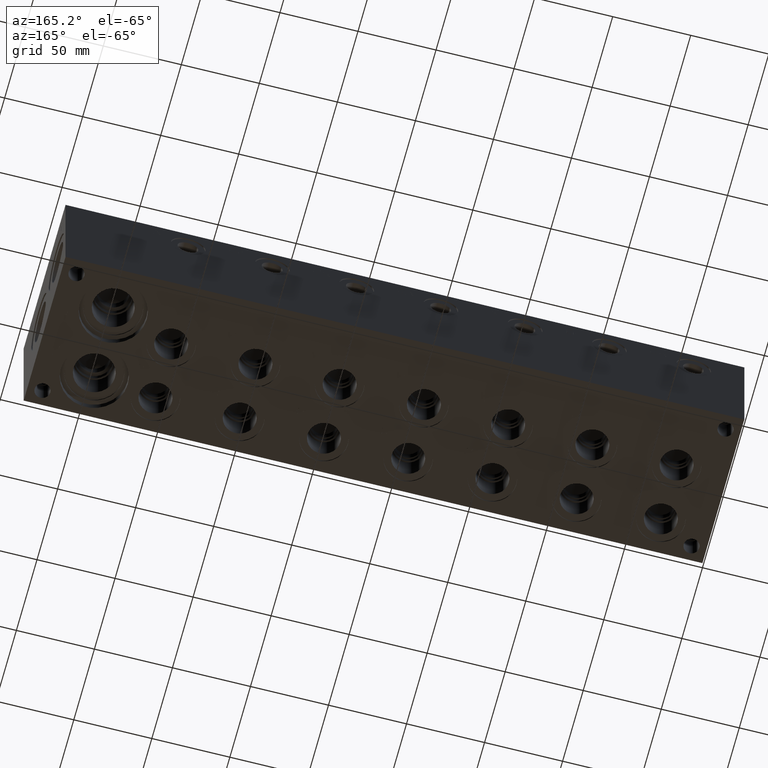
[diagram: clean part render]
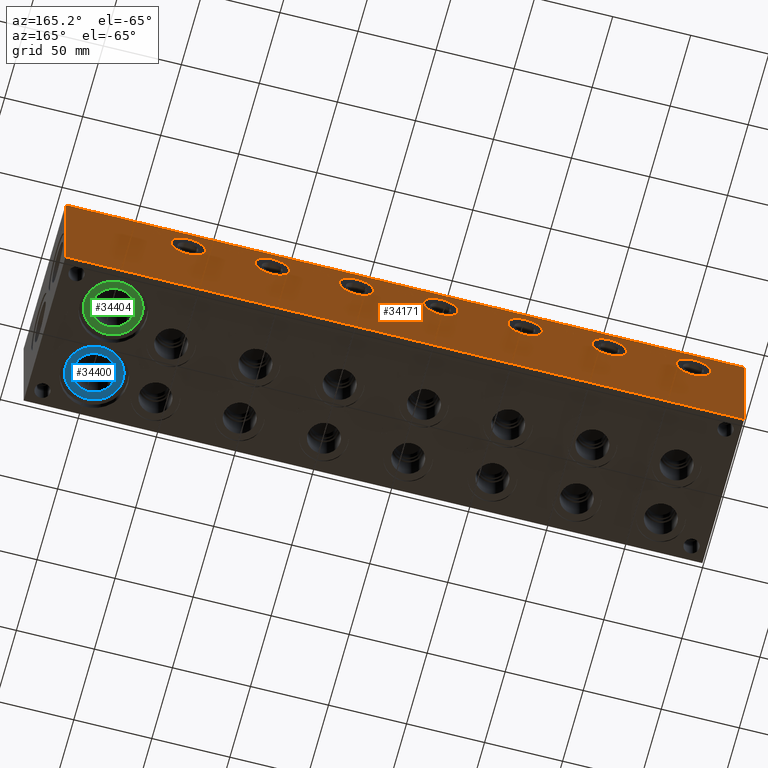
[diagram: same view with three faces highlighted in distinct colors, each labeled with its STEP entity id]
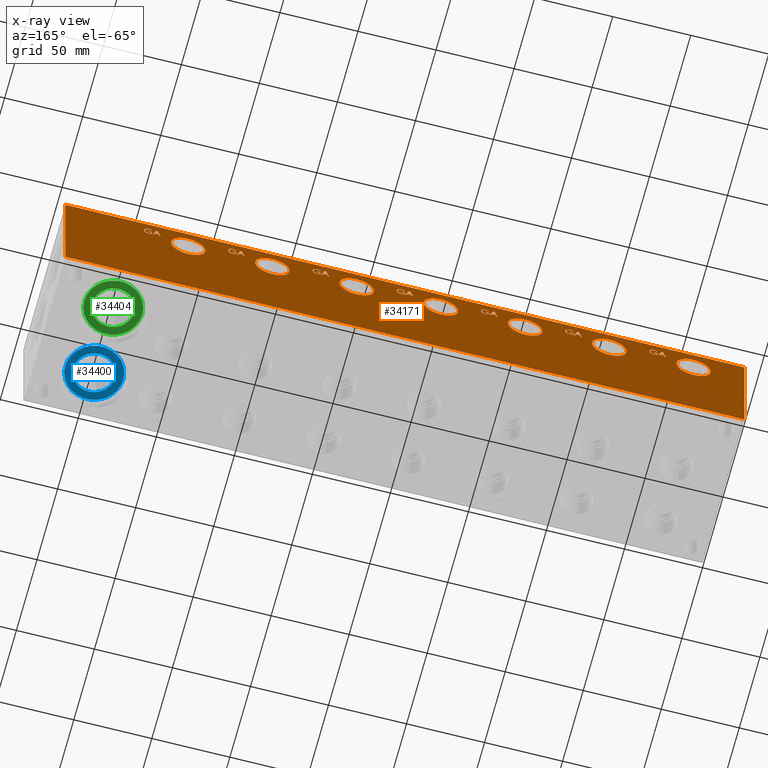
[diagram: x-ray of the same camera — body ghosted, the three highlighted faces saturated]
A machine part, auxiliary view with three faces highlighted in distinct colors.
The next image is the same camera in x-ray (body ghosted, the three faces saturated) — at least one of them is partly hidden behind the body in this view.
Their STEP definitions:

[orange] entity #34171 — the highlighted planar face has unit normal (0, 1, 0).
#456=CIRCLE('',#35593,11.0617);
#457=CIRCLE('',#35594,11.0617);
#458=CIRCLE('',#35595,11.0617);
#459=CIRCLE('',#35596,11.0617);
#460=CIRCLE('',#35597,11.0617);
#461=CIRCLE('',#35598,11.0617);
#462=CIRCLE('',#35599,11.0617);
#463=CIRCLE('',#35600,11.0617);
#464=CIRCLE('',#35601,11.0617);
#465=CIRCLE('',#35602,11.0617);
#466=CIRCLE('',#35603,11.0617);
#467=CIRCLE('',#35604,11.0617);
#468=CIRCLE('',#35605,11.0617);
#469=CIRCLE('',#35606,11.0617);
#1429=FACE_BOUND('',#6318,.T.);
#1430=FACE_BOUND('',#6319,.T.);
#1431=FACE_BOUND('',#6320,.T.);
#1432=FACE_BOUND('',#6321,.T.);
#1433=FACE_BOUND('',#6322,.T.);
#1434=FACE_BOUND('',#6323,.T.);
#1435=FACE_BOUND('',#6324,.T.);
#1436=FACE_BOUND('',#6325,.T.);
#1437=FACE_BOUND('',#6326,.T.);
#1438=FACE_BOUND('',#6327,.T.);
#1439=FACE_BOUND('',#6328,.T.);
#1440=FACE_BOUND('',#6329,.T.);
#1441=FACE_BOUND('',#6330,.T.);
#1442=FACE_BOUND('',#6331,.T.);
#1443=FACE_BOUND('',#6332,.T.);
#1444=FACE_BOUND('',#6333,.T.);
#1445=FACE_BOUND('',#6334,.T.);
#1446=FACE_BOUND('',#6335,.T.);
#1447=FACE_BOUND('',#6336,.T.);
#1448=FACE_BOUND('',#6337,.T.);
#1449=FACE_BOUND('',#6338,.T.);
#2515=B_SPLINE_CURVE_WITH_KNOTS('',2,(#56134,#56135,#56136,#56137),
 .UNSPECIFIED.,.F.,.F.,(3,1,3),(0.,1.,2.),.UNSPECIFIED.);
#2517=B_SPLINE_CURVE_WITH_KNOTS('',2,(#56155,#56156,#56157,#56158),
 .UNSPECIFIED.,.F.,.F.,(3,1,3),(0.,1.,2.),.UNSPECIFIED.);
#2519=B_SPLINE_CURVE_WITH_KNOTS('',2,(#56204,#56205,#56206,#56207),
 .UNSPECIFIED.,.F.,.F.,(3,1,3),(0.,1.,2.),.UNSPECIFIED.);
#2521=B_SPLINE_CURVE_WITH_KNOTS('',2,(#56223,#56224,#56225,#56226),
 .UNSPECIFIED.,.F.,.F.,(3,1,3),(0.,1.,2.),.UNSPECIFIED.);
#2523=B_SPLINE_CURVE_WITH_KNOTS('',2,(#56242,#56243,#56244,#56245),
 .UNSPECIFIED.,.F.,.F.,(3,1,3),(0.,1.,2.),.UNSPECIFIED.);
#2525=B_SPLINE_CURVE_WITH_KNOTS('',2,(#56261,#56262,#56263,#56264),
 .UNSPECIFIED.,.F.,.F.,(3,1,3),(0.,1.,2.),.UNSPECIFIED.);
#2527=B_SPLINE_CURVE_WITH_KNOTS('',2,(#56280,#56281,#56282,#56283),
 .UNSPECIFIED.,.F.,.F.,(3,1,3),(0.,1.,2.),.UNSPECIFIED.);
#2529=B_SPLINE_CURVE_WITH_KNOTS('',2,(#56299,#56300,#56301,#56302),
 .UNSPECIFIED.,.F.,.F.,(3,1,3),(0.,1.,2.),.UNSPECIFIED.);
#2531=B_SPLINE_CURVE_WITH_KNOTS('',2,(#56330,#56331,#56332,#56333),
 .UNSPECIFIED.,.F.,.F.,(3,1,3),(0.,1.,2.),.UNSPECIFIED.);
#2533=B_SPLINE_CURVE_WITH_KNOTS('',2,(#56349,#56350,#56351,#56352),
 .UNSPECIFIED.,.F.,.F.,(3,1,3),(0.,1.,2.),.UNSPECIFIED.);
#2535=B_SPLINE_CURVE_WITH_KNOTS('',2,(#56368,#56369,#56370,#56371),
 .UNSPECIFIED.,.F.,.F.,(3,1,3),(0.,1.,2.),.UNSPECIFIED.);
#2537=B_SPLINE_CURVE_WITH_KNOTS('',2,(#56387,#56388,#56389,#56390),
 .UNSPECIFIED.,.F.,.F.,(3,1,3),(0.,1.,2.),.UNSPECIFIED.);
#2539=B_SPLINE_CURVE_WITH_KNOTS('',2,(#56406,#56407,#56408,#56409),
 .UNSPECIFIED.,.F.,.F.,(3,1,3),(0.,1.,2.),.UNSPECIFIED.);
#2541=B_SPLINE_CURVE_WITH_KNOTS('',2,(#56424,#56425,#56426,#56427),
 .UNSPECIFIED.,.F.,.F.,(3,1,3),(0.,1.,2.),.UNSPECIFIED.);
#2543=B_SPLINE_CURVE_WITH_KNOTS('',2,(#56453,#56454,#56455,#56456),
 .UNSPECIFIED.,.F.,.F.,(3,1,3),(0.,1.,2.),.UNSPECIFIED.);
#2544=B_SPLINE_CURVE_WITH_KNOTS('',2,(#56458,#56459,#56460,#56461),
 .UNSPECIFIED.,.F.,.F.,(3,1,3),(0.,1.,2.),.UNSPECIFIED.);
#2545=B_SPLINE_CURVE_WITH_KNOTS('',2,(#56463,#56464,#56465,#56466),
 .UNSPECIFIED.,.F.,.F.,(3,1,3),(0.,1.,2.),.UNSPECIFIED.);
#2546=B_SPLINE_CURVE_WITH_KNOTS('',2,(#56468,#56469,#56470,#56471),
 .UNSPECIFIED.,.F.,.F.,(3,1,3),(0.,1.,2.),.UNSPECIFIED.);
#2547=B_SPLINE_CURVE_WITH_KNOTS('',2,(#56473,#56474,#56475,#56476),
 .UNSPECIFIED.,.F.,.F.,(3,1,3),(0.,1.,2.),.UNSPECIFIED.);
#2548=B_SPLINE_CURVE_WITH_KNOTS('',2,(#56478,#56479,#56480,#56481),
 .UNSPECIFIED.,.F.,.F.,(3,1,3),(0.,1.,2.),.UNSPECIFIED.);
#2549=B_SPLINE_CURVE_WITH_KNOTS('',2,(#56483,#56484,#56485,#56486),
 .UNSPECIFIED.,.F.,.F.,(3,1,3),(0.,1.,2.),.UNSPECIFIED.);
#2550=B_SPLINE_CURVE_WITH_KNOTS('',2,(#56492,#56493,#56494,#56495),
 .UNSPECIFIED.,.F.,.F.,(3,1,3),(0.,1.,2.),.UNSPECIFIED.);
#2551=B_SPLINE_CURVE_WITH_KNOTS('',2,(#56497,#56498,#56499,#56500),
 .UNSPECIFIED.,.F.,.F.,(3,1,3),(0.,1.,2.),.UNSPECIFIED.);
#2552=B_SPLINE_CURVE_WITH_KNOTS('',2,(#56502,#56503,#56504,#56505),
 .UNSPECIFIED.,.F.,.F.,(3,1,3),(0.,1.,2.),.UNSPECIFIED.);
#2553=B_SPLINE_CURVE_WITH_KNOTS('',2,(#56507,#56508,#56509,#56510),
 .UNSPECIFIED.,.F.,.F.,(3,1,3),(0.,1.,2.),.UNSPECIFIED.);
#2554=B_SPLINE_CURVE_WITH_KNOTS('',2,(#56512,#56513,#56514,#56515),
 .UNSPECIFIED.,.F.,.F.,(3,1,3),(0.,1.,2.),.UNSPECIFIED.);
#2555=B_SPLINE_CURVE_WITH_KNOTS('',2,(#56517,#56518,#56519,#56520),
 .UNSPECIFIED.,.F.,.F.,(3,1,3),(0.,1.,2.),.UNSPECIFIED.);
#2556=B_SPLINE_CURVE_WITH_KNOTS('',2,(#56531,#56532,#56533,#56534),
 .UNSPECIFIED.,.F.,.F.,(3,1,3),(0.,1.,2.),.UNSPECIFIED.);
#2557=B_SPLINE_CURVE_WITH_KNOTS('',2,(#56553,#56554,#56555,#56556),
 .UNSPECIFIED.,.F.,.F.,(3,1,3),(0.,1.,2.),.UNSPECIFIED.);
#2558=B_SPLINE_CURVE_WITH_KNOTS('',2,(#56558,#56559,#56560,#56561),
 .UNSPECIFIED.,.F.,.F.,(3,1,3),(0.,1.,2.),.UNSPECIFIED.);
#2559=B_SPLINE_CURVE_WITH_KNOTS('',2,(#56563,#56564,#56565,#56566),
 .UNSPECIFIED.,.F.,.F.,(3,1,3),(0.,1.,2.),.UNSPECIFIED.);
#2560=B_SPLINE_CURVE_WITH_KNOTS('',2,(#56568,#56569,#56570,#56571),
 .UNSPECIFIED.,.F.,.F.,(3,1,3),(0.,1.,2.),.UNSPECIFIED.);
#2561=B_SPLINE_CURVE_WITH_KNOTS('',2,(#56573,#56574,#56575,#56576),
 .UNSPECIFIED.,.F.,.F.,(3,1,3),(0.,1.,2.),.UNSPECIFIED.);
#2562=B_SPLINE_CURVE_WITH_KNOTS('',2,(#56578,#56579,#56580,#56581),
 .UNSPECIFIED.,.F.,.F.,(3,1,3),(0.,1.,2.),.UNSPECIFIED.);
#2563=B_SPLINE_CURVE_WITH_KNOTS('',2,(#56583,#56584,#56585,#56586),
 .UNSPECIFIED.,.F.,.F.,(3,1,3),(0.,1.,2.),.UNSPECIFIED.);
#2564=B_SPLINE_CURVE_WITH_KNOTS('',2,(#56592,#56593,#56594,#56595),
 .UNSPECIFIED.,.F.,.F.,(3,1,3),(0.,1.,2.),.UNSPECIFIED.);
#2565=B_SPLINE_CURVE_WITH_KNOTS('',2,(#56597,#56598,#56599,#56600),
 .UNSPECIFIED.,.F.,.F.,(3,1,3),(0.,1.,2.),.UNSPECIFIED.);
#2566=B_SPLINE_CURVE_WITH_KNOTS('',2,(#56602,#56603,#56604,#56605),
 .UNSPECIFIED.,.F.,.F.,(3,1,3),(0.,1.,2.),.UNSPECIFIED.);
#2567=B_SPLINE_CURVE_WITH_KNOTS('',2,(#56607,#56608,#56609,#56610),
 .UNSPECIFIED.,.F.,.F.,(3,1,3),(0.,1.,2.),.UNSPECIFIED.);
#2568=B_SPLINE_CURVE_WITH_KNOTS('',2,(#56612,#56613,#56614,#56615),
 .UNSPECIFIED.,.F.,.F.,(3,1,3),(0.,1.,2.),.UNSPECIFIED.);
#2569=B_SPLINE_CURVE_WITH_KNOTS('',2,(#56617,#56618,#56619,#56620),
 .UNSPECIFIED.,.F.,.F.,(3,1,3),(0.,1.,2.),.UNSPECIFIED.);
#2570=B_SPLINE_CURVE_WITH_KNOTS('',2,(#56631,#56632,#56633,#56634),
 .UNSPECIFIED.,.F.,.F.,(3,1,3),(0.,1.,2.),.UNSPECIFIED.);
#2571=B_SPLINE_CURVE_WITH_KNOTS('',2,(#56653,#56654,#56655,#56656),
 .UNSPECIFIED.,.F.,.F.,(3,1,3),(0.,1.,2.),.UNSPECIFIED.);
#2572=B_SPLINE_CURVE_WITH_KNOTS('',2,(#56658,#56659,#56660,#56661),
 .UNSPECIFIED.,.F.,.F.,(3,1,3),(0.,1.,2.),.UNSPECIFIED.);
#2573=B_SPLINE_CURVE_WITH_KNOTS('',2,(#56663,#56664,#56665,#56666),
 .UNSPECIFIED.,.F.,.F.,(3,1,3),(0.,1.,2.),.UNSPECIFIED.);
#2574=B_SPLINE_CURVE_WITH_KNOTS('',2,(#56668,#56669,#56670,#56671),
 .UNSPECIFIED.,.F.,.F.,(3,1,3),(0.,1.,2.),.UNSPECIFIED.);
#2575=B_SPLINE_CURVE_WITH_KNOTS('',2,(#56673,#56674,#56675,#56676),
 .UNSPECIFIED.,.F.,.F.,(3,1,3),(0.,1.,2.),.UNSPECIFIED.);
#2576=B_SPLINE_CURVE_WITH_KNOTS('',2,(#56678,#56679,#56680,#56681),
 .UNSPECIFIED.,.F.,.F.,(3,1,3),(0.,1.,2.),.UNSPECIFIED.);
#2577=B_SPLINE_CURVE_WITH_KNOTS('',2,(#56683,#56684,#56685,#56686),
 .UNSPECIFIED.,.F.,.F.,(3,1,3),(0.,1.,2.),.UNSPECIFIED.);
#2578=B_SPLINE_CURVE_WITH_KNOTS('',2,(#56692,#56693,#56694,#56695),
 .UNSPECIFIED.,.F.,.F.,(3,1,3),(0.,1.,2.),.UNSPECIFIED.);
#2579=B_SPLINE_CURVE_WITH_KNOTS('',2,(#56697,#56698,#56699,#56700),
 .UNSPECIFIED.,.F.,.F.,(3,1,3),(0.,1.,2.),.UNSPECIFIED.);
#2580=B_SPLINE_CURVE_WITH_KNOTS('',2,(#56702,#56703,#56704,#56705),
 .UNSPECIFIED.,.F.,.F.,(3,1,3),(0.,1.,2.),.UNSPECIFIED.);
#2581=B_SPLINE_CURVE_WITH_KNOTS('',2,(#56707,#56708,#56709,#56710),
 .UNSPECIFIED.,.F.,.F.,(3,1,3),(0.,1.,2.),.UNSPECIFIED.);
#2582=B_SPLINE_CURVE_WITH_KNOTS('',2,(#56712,#56713,#56714,#56715),
 .UNSPECIFIED.,.F.,.F.,(3,1,3),(0.,1.,2.),.UNSPECIFIED.);
#2583=B_SPLINE_CURVE_WITH_KNOTS('',2,(#56717,#56718,#56719,#56720),
 .UNSPECIFIED.,.F.,.F.,(3,1,3),(0.,1.,2.),.UNSPECIFIED.);
#2584=B_SPLINE_CURVE_WITH_KNOTS('',2,(#56731,#56732,#56733,#56734),
 .UNSPECIFIED.,.F.,.F.,(3,1,3),(0.,1.,2.),.UNSPECIFIED.);
#2585=B_SPLINE_CURVE_WITH_KNOTS('',2,(#56765,#56766,#56767,#56768),
 .UNSPECIFIED.,.F.,.F.,(3,1,3),(0.,1.,2.),.UNSPECIFIED.);
#2586=B_SPLINE_CURVE_WITH_KNOTS('',2,(#56770,#56771,#56772,#56773),
 .UNSPECIFIED.,.F.,.F.,(3,1,3),(0.,1.,2.),.UNSPECIFIED.);
#2587=B_SPLINE_CURVE_WITH_KNOTS('',2,(#56775,#56776,#56777,#56778),
 .UNSPECIFIED.,.F.,.F.,(3,1,3),(0.,1.,2.),.UNSPECIFIED.);
#2588=B_SPLINE_CURVE_WITH_KNOTS('',2,(#56780,#56781,#56782,#56783),
 .UNSPECIFIED.,.F.,.F.,(3,1,3),(0.,1.,2.),.UNSPECIFIED.);
#2589=B_SPLINE_CURVE_WITH_KNOTS('',2,(#56785,#56786,#56787,#56788),
 .UNSPECIFIED.,.F.,.F.,(3,1,3),(0.,1.,2.),.UNSPECIFIED.);
#2590=B_SPLINE_CURVE_WITH_KNOTS('',2,(#56790,#56791,#56792,#56793),
 .UNSPECIFIED.,.F.,.F.,(3,1,3),(0.,1.,2.),.UNSPECIFIED.);
#2591=B_SPLINE_CURVE_WITH_KNOTS('',2,(#56795,#56796,#56797,#56798),
 .UNSPECIFIED.,.F.,.F.,(3,1,3),(0.,1.,2.),.UNSPECIFIED.);
#2592=B_SPLINE_CURVE_WITH_KNOTS('',2,(#56804,#56805,#56806,#56807),
 .UNSPECIFIED.,.F.,.F.,(3,1,3),(0.,1.,2.),.UNSPECIFIED.);
#2593=B_SPLINE_CURVE_WITH_KNOTS('',2,(#56809,#56810,#56811,#56812),
 .UNSPECIFIED.,.F.,.F.,(3,1,3),(0.,1.,2.),.UNSPECIFIED.);
#2594=B_SPLINE_CURVE_WITH_KNOTS('',2,(#56814,#56815,#56816,#56817),
 .UNSPECIFIED.,.F.,.F.,(3,1,3),(0.,1.,2.),.UNSPECIFIED.);
#2595=B_SPLINE_CURVE_WITH_KNOTS('',2,(#56819,#56820,#56821,#56822),
 .UNSPECIFIED.,.F.,.F.,(3,1,3),(0.,1.,2.),.UNSPECIFIED.);
#2596=B_SPLINE_CURVE_WITH_KNOTS('',2,(#56824,#56825,#56826,#56827),
 .UNSPECIFIED.,.F.,.F.,(3,1,3),(0.,1.,2.),.UNSPECIFIED.);
#2597=B_SPLINE_CURVE_WITH_KNOTS('',2,(#56829,#56830,#56831,#56832),
 .UNSPECIFIED.,.F.,.F.,(3,1,3),(0.,1.,2.),.UNSPECIFIED.);
#2598=B_SPLINE_CURVE_WITH_KNOTS('',2,(#56843,#56844,#56845,#56846),
 .UNSPECIFIED.,.F.,.F.,(3,1,3),(0.,1.,2.),.UNSPECIFIED.);
#2599=B_SPLINE_CURVE_WITH_KNOTS('',2,(#56865,#56866,#56867,#56868),
 .UNSPECIFIED.,.F.,.F.,(3,1,3),(0.,1.,2.),.UNSPECIFIED.);
#2600=B_SPLINE_CURVE_WITH_KNOTS('',2,(#56870,#56871,#56872,#56873),
 .UNSPECIFIED.,.F.,.F.,(3,1,3),(0.,1.,2.),.UNSPECIFIED.);
#2601=B_SPLINE_CURVE_WITH_KNOTS('',2,(#56875,#56876,#56877,#56878),
 .UNSPECIFIED.,.F.,.F.,(3,1,3),(0.,1.,2.),.UNSPECIFIED.);
#2602=B_SPLINE_CURVE_WITH_KNOTS('',2,(#56880,#56881,#56882,#56883),
 .UNSPECIFIED.,.F.,.F.,(3,1,3),(0.,1.,2.),.UNSPECIFIED.);
#2603=B_SPLINE_CURVE_WITH_KNOTS('',2,(#56885,#56886,#56887,#56888),
 .UNSPECIFIED.,.F.,.F.,(3,1,3),(0.,1.,2.),.UNSPECIFIED.);
#2604=B_SPLINE_CURVE_WITH_KNOTS('',2,(#56890,#56891,#56892,#56893),
 .UNSPECIFIED.,.F.,.F.,(3,1,3),(0.,1.,2.),.UNSPECIFIED.);
#2605=B_SPLINE_CURVE_WITH_KNOTS('',2,(#56895,#56896,#56897,#56898),
 .UNSPECIFIED.,.F.,.F.,(3,1,3),(0.,1.,2.),.UNSPECIFIED.);
#2606=B_SPLINE_CURVE_WITH_KNOTS('',2,(#56904,#56905,#56906,#56907),
 .UNSPECIFIED.,.F.,.F.,(3,1,3),(0.,1.,2.),.UNSPECIFIED.);
#2607=B_SPLINE_CURVE_WITH_KNOTS('',2,(#56909,#56910,#56911,#56912),
 .UNSPECIFIED.,.F.,.F.,(3,1,3),(0.,1.,2.),.UNSPECIFIED.);
#2608=B_SPLINE_CURVE_WITH_KNOTS('',2,(#56914,#56915,#56916,#56917),
 .UNSPECIFIED.,.F.,.F.,(3,1,3),(0.,1.,2.),.UNSPECIFIED.);
#2609=B_SPLINE_CURVE_WITH_KNOTS('',2,(#56919,#56920,#56921,#56922),
 .UNSPECIFIED.,.F.,.F.,(3,1,3),(0.,1.,2.),.UNSPECIFIED.);
#2610=B_SPLINE_CURVE_WITH_KNOTS('',2,(#56924,#56925,#56926,#56927),
 .UNSPECIFIED.,.F.,.F.,(3,1,3),(0.,1.,2.),.UNSPECIFIED.);
#2611=B_SPLINE_CURVE_WITH_KNOTS('',2,(#56929,#56930,#56931,#56932),
 .UNSPECIFIED.,.F.,.F.,(3,1,3),(0.,1.,2.),.UNSPECIFIED.);
#2612=B_SPLINE_CURVE_WITH_KNOTS('',2,(#56943,#56944,#56945,#56946),
 .UNSPECIFIED.,.F.,.F.,(3,1,3),(0.,1.,2.),.UNSPECIFIED.);
#2613=B_SPLINE_CURVE_WITH_KNOTS('',2,(#56965,#56966,#56967,#56968),
 .UNSPECIFIED.,.F.,.F.,(3,1,3),(0.,1.,2.),.UNSPECIFIED.);
#2614=B_SPLINE_CURVE_WITH_KNOTS('',2,(#56970,#56971,#56972,#56973),
 .UNSPECIFIED.,.F.,.F.,(3,1,3),(0.,1.,2.),.UNSPECIFIED.);
#2615=B_SPLINE_CURVE_WITH_KNOTS('',2,(#56975,#56976,#56977,#56978),
 .UNSPECIFIED.,.F.,.F.,(3,1,3),(0.,1.,2.),.UNSPECIFIED.);
#2616=B_SPLINE_CURVE_WITH_KNOTS('',2,(#56980,#56981,#56982,#56983),
 .UNSPECIFIED.,.F.,.F.,(3,1,3),(0.,1.,2.),.UNSPECIFIED.);
#2617=B_SPLINE_CURVE_WITH_KNOTS('',2,(#56985,#56986,#56987,#56988),
 .UNSPECIFIED.,.F.,.F.,(3,1,3),(0.,1.,2.),.UNSPECIFIED.);
#2618=B_SPLINE_CURVE_WITH_KNOTS('',2,(#56990,#56991,#56992,#56993),
 .UNSPECIFIED.,.F.,.F.,(3,1,3),(0.,1.,2.),.UNSPECIFIED.);
#2619=B_SPLINE_CURVE_WITH_KNOTS('',2,(#56995,#56996,#56997,#56998),
 .UNSPECIFIED.,.F.,.F.,(3,1,3),(0.,1.,2.),.UNSPECIFIED.);
#2620=B_SPLINE_CURVE_WITH_KNOTS('',2,(#57004,#57005,#57006,#57007),
 .UNSPECIFIED.,.F.,.F.,(3,1,3),(0.,1.,2.),.UNSPECIFIED.);
#2621=B_SPLINE_CURVE_WITH_KNOTS('',2,(#57009,#57010,#57011,#57012),
 .UNSPECIFIED.,.F.,.F.,(3,1,3),(0.,1.,2.),.UNSPECIFIED.);
#2622=B_SPLINE_CURVE_WITH_KNOTS('',2,(#57014,#57015,#57016,#57017),
 .UNSPECIFIED.,.F.,.F.,(3,1,3),(0.,1.,2.),.UNSPECIFIED.);
#2623=B_SPLINE_CURVE_WITH_KNOTS('',2,(#57019,#57020,#57021,#57022),
 .UNSPECIFIED.,.F.,.F.,(3,1,3),(0.,1.,2.),.UNSPECIFIED.);
#2624=B_SPLINE_CURVE_WITH_KNOTS('',2,(#57024,#57025,#57026,#57027),
 .UNSPECIFIED.,.F.,.F.,(3,1,3),(0.,1.,2.),.UNSPECIFIED.);
#2625=B_SPLINE_CURVE_WITH_KNOTS('',2,(#57029,#57030,#57031,#57032),
 .UNSPECIFIED.,.F.,.F.,(3,1,3),(0.,1.,2.),.UNSPECIFIED.);
#2626=B_SPLINE_CURVE_WITH_KNOTS('',2,(#57043,#57044,#57045,#57046),
 .UNSPECIFIED.,.F.,.F.,(3,1,3),(0.,1.,2.),.UNSPECIFIED.);
#4375=FACE_OUTER_BOUND('',#6317,.T.);
#6317=EDGE_LOOP('',(#27192,#27193,#27194,#27195));
#6318=EDGE_LOOP('',(#27196,#27197,#27198,#27199,#27200,#27201,#27202,#27203));
#6319=EDGE_LOOP('',(#27204,#27205,#27206,#27207,#27208,#27209,#27210,#27211,
#27212,#27213,#27214,#27215,#27216,#27217,#27218,#27219,#27220,#27221,#27222,
#27223,#27224));
#6320=EDGE_LOOP('',(#27225,#27226,#27227,#27228,#27229,#27230,#27231,#27232));
#6321=EDGE_LOOP('',(#27233,#27234,#27235,#27236,#27237,#27238,#27239,#27240,
#27241,#27242,#27243,#27244,#27245,#27246,#27247,#27248,#27249,#27250,#27251,
#27252,#27253));
#6322=EDGE_LOOP('',(#27254,#27255,#27256,#27257,#27258,#27259,#27260,#27261));
#6323=EDGE_LOOP('',(#27262,#27263,#27264,#27265,#27266,#27267,#27268,#27269,
#27270,#27271,#27272,#27273,#27274,#27275,#27276,#27277,#27278,#27279,#27280,
#27281,#27282));
#6324=EDGE_LOOP('',(#27283,#27284));
#6325=EDGE_LOOP('',(#27285,#27286));
#6326=EDGE_LOOP('',(#27287,#27288));
#6327=EDGE_LOOP('',(#27289,#27290));
#6328=EDGE_LOOP('',(#27291,#27292));
#6329=EDGE_LOOP('',(#27293,#27294));
#6330=EDGE_LOOP('',(#27295,#27296));
#6331=EDGE_LOOP('',(#27297,#27298,#27299,#27300,#27301,#27302,#27303,#27304,
#27305,#27306,#27307,#27308,#27309,#27310,#27311,#27312,#27313,#27314,#27315,
#27316,#27317));
#6332=EDGE_LOOP('',(#27318,#27319,#27320,#27321,#27322,#27323,#27324,#27325));
#6333=EDGE_LOOP('',(#27326,#27327,#27328,#27329,#27330,#27331,#27332,#27333,
#27334,#27335,#27336,#27337,#27338,#27339,#27340,#27341,#27342,#27343,#27344,
#27345,#27346));
#6334=EDGE_LOOP('',(#27347,#27348,#27349,#27350,#27351,#27352,#27353,#27354));
#6335=EDGE_LOOP('',(#27355,#27356,#27357,#27358,#27359,#27360,#27361,#27362,
#27363,#27364,#27365,#27366,#27367,#27368,#27369,#27370,#27371,#27372,#27373,
#27374,#27375));
#6336=EDGE_LOOP('',(#27376,#27377,#27378,#27379,#27380,#27381,#27382,#27383));
#6337=EDGE_LOOP('',(#27384,#27385,#27386,#27387,#27388,#27389,#27390,#27391,
#27392,#27393,#27394,#27395,#27396,#27397,#27398,#27399,#27400,#27401,#27402,
#27403,#27404));
#6338=EDGE_LOOP('',(#27405,#27406,#27407,#27408,#27409,#27410,#27411,#27412));
#8033=LINE('',#48663,#10897);
#8606=LINE('',#51727,#11470);
#8665=LINE('',#51990,#11529);
#9230=LINE('',#56078,#12094);
#9234=LINE('',#56086,#12098);
#9237=LINE('',#56092,#12101);
#9240=LINE('',#56098,#12104);
#9243=LINE('',#56104,#12107);
#9246=LINE('',#56110,#12110);
#9249=LINE('',#56116,#12113);
#9252=LINE('',#56121,#12116);
#9257=LINE('',#56167,#12121);
#9260=LINE('',#56173,#12124);
#9263=LINE('',#56179,#12127);
#9266=LINE('',#56185,#12130);
#9269=LINE('',#56191,#12133);
#9278=LINE('',#56311,#12142);
#9281=LINE('',#56317,#12145);
#9289=LINE('',#56434,#12153);
#9290=LINE('',#56437,#12154);
#9291=LINE('',#56439,#12155);
#9292=LINE('',#56441,#12156);
#9293=LINE('',#56443,#12157);
#9294=LINE('',#56445,#12158);
#9295=LINE('',#56447,#12159);
#9296=LINE('',#56449,#12160);
#9297=LINE('',#56450,#12161);
#9298=LINE('',#56488,#12162);
#9299=LINE('',#56490,#12163);
#9300=LINE('',#56522,#12164);
#9301=LINE('',#56524,#12165);
#9302=LINE('',#56526,#12166);
#9303=LINE('',#56528,#12167);
#9304=LINE('',#56530,#12168);
#9305=LINE('',#56537,#12169);
#9306=LINE('',#56539,#12170);
#9307=LINE('',#56541,#12171);
#9308=LINE('',#56543,#12172);
#9309=LINE('',#56545,#12173);
#9310=LINE('',#56547,#12174);
#9311=LINE('',#56549,#12175);
#9312=LINE('',#56550,#12176);
#9313=LINE('',#56588,#12177);
#9314=LINE('',#56590,#12178);
#9315=LINE('',#56622,#12179);
#9316=LINE('',#56624,#12180);
#9317=LINE('',#56626,#12181);
#9318=LINE('',#56628,#12182);
#9319=LINE('',#56630,#12183);
#9320=LINE('',#56637,#12184);
#9321=LINE('',#56639,#12185);
#9322=LINE('',#56641,#12186);
#9323=LINE('',#56643,#12187);
#9324=LINE('',#56645,#12188);
#9325=LINE('',#56647,#12189);
#9326=LINE('',#56649,#12190);
#9327=LINE('',#56650,#12191);
#9328=LINE('',#56688,#12192);
#9329=LINE('',#56690,#12193);
#9330=LINE('',#56722,#12194);
#9331=LINE('',#56724,#12195);
#9332=LINE('',#56726,#12196);
#9333=LINE('',#56728,#12197);
#9334=LINE('',#56730,#12198);
#9335=LINE('',#56800,#12199);
#9336=LINE('',#56802,#12200);
#9337=LINE('',#56834,#12201);
#9338=LINE('',#56836,#12202);
#9339=LINE('',#56838,#12203);
#9340=LINE('',#56840,#12204);
#9341=LINE('',#56842,#12205);
#9342=LINE('',#56849,#12206);
#9343=LINE('',#56851,#12207);
#9344=LINE('',#56853,#12208);
#9345=LINE('',#56855,#12209);
#9346=LINE('',#56857,#12210);
#9347=LINE('',#56859,#12211);
#9348=LINE('',#56861,#12212);
#9349=LINE('',#56862,#12213);
#9350=LINE('',#56900,#12214);
#9351=LINE('',#56902,#12215);
#9352=LINE('',#56934,#12216);
#9353=LINE('',#56936,#12217);
#9354=LINE('',#56938,#12218);
#9355=LINE('',#56940,#12219);
#9356=LINE('',#56942,#12220);
#9357=LINE('',#56949,#12221);
#9358=LINE('',#56951,#12222);
#9359=LINE('',#56953,#12223);
#9360=LINE('',#56955,#12224);
#9361=LINE('',#56957,#12225);
#9362=LINE('',#56959,#12226);
#9363=LINE('',#56961,#12227);
#9364=LINE('',#56962,#12228);
#9365=LINE('',#57000,#12229);
#9366=LINE('',#57002,#12230);
#9367=LINE('',#57034,#12231);
#9368=LINE('',#57036,#12232);
#9369=LINE('',#57038,#12233);
#9370=LINE('',#57040,#12234);
#9371=LINE('',#57042,#12235);
#9372=LINE('',#57049,#12236);
#9373=LINE('',#57051,#12237);
#9374=LINE('',#57053,#12238);
#9375=LINE('',#57055,#12239);
#9376=LINE('',#57057,#12240);
#9377=LINE('',#57059,#12241);
#9378=LINE('',#57061,#12242);
#9379=LINE('',#57062,#12243);
#10897=VECTOR('',#38376,10.);
#11470=VECTOR('',#39413,10.);
#11529=VECTOR('',#39518,10.);
#12094=VECTOR('',#40447,10.);
#12098=VECTOR('',#40453,10.);
#12101=VECTOR('',#40458,10.);
#12104=VECTOR('',#40463,10.);
#12107=VECTOR('',#40468,10.);
#12110=VECTOR('',#40473,10.);
#12113=VECTOR('',#40478,10.);
#12116=VECTOR('',#40483,10.);
#12121=VECTOR('',#40492,10.);
#12124=VECTOR('',#40497,10.);
#12127=VECTOR('',#40502,10.);
#12130=VECTOR('',#40507,10.);
#12133=VECTOR('',#40512,10.);
#12142=VECTOR('',#40523,10.);
#12145=VECTOR('',#40528,10.);
#12153=VECTOR('',#40540,10.);
#12154=VECTOR('',#40541,10.);
#12155=VECTOR('',#40542,10.);
#12156=VECTOR('',#40543,10.);
#12157=VECTOR('',#40544,10.);
#12158=VECTOR('',#40545,10.);
#12159=VECTOR('',#40546,10.);
#12160=VECTOR('',#40547,10.);
#12161=VECTOR('',#40548,10.);
#12162=VECTOR('',#40549,10.);
#12163=VECTOR('',#40550,10.);
#12164=VECTOR('',#40551,10.);
#12165=VECTOR('',#40552,10.);
#12166=VECTOR('',#40553,10.);
#12167=VECTOR('',#40554,10.);
#12168=VECTOR('',#40555,10.);
#12169=VECTOR('',#40556,10.);
#12170=VECTOR('',#40557,10.);
#12171=VECTOR('',#40558,10.);
#12172=VECTOR('',#40559,10.);
#12173=VECTOR('',#40560,10.);
#12174=VECTOR('',#40561,10.);
#12175=VECTOR('',#40562,10.);
#12176=VECTOR('',#40563,10.);
#12177=VECTOR('',#40564,10.);
#12178=VECTOR('',#40565,10.);
#12179=VECTOR('',#40566,10.);
#12180=VECTOR('',#40567,10.);
#12181=VECTOR('',#40568,10.);
#12182=VECTOR('',#40569,10.);
#12183=VECTOR('',#40570,10.);
#12184=VECTOR('',#40571,10.);
#12185=VECTOR('',#40572,10.);
#12186=VECTOR('',#40573,10.);
#12187=VECTOR('',#40574,10.);
#12188=VECTOR('',#40575,10.);
#12189=VECTOR('',#40576,10.);
#12190=VECTOR('',#40577,10.);
#12191=VECTOR('',#40578,10.);
#12192=VECTOR('',#40579,10.);
#12193=VECTOR('',#40580,10.);
#12194=VECTOR('',#40581,10.);
#12195=VECTOR('',#40582,10.);
#12196=VECTOR('',#40583,10.);
#12197=VECTOR('',#40584,10.);
#12198=VECTOR('',#40585,10.);
#12199=VECTOR('',#40614,10.);
#12200=VECTOR('',#40615,10.);
#12201=VECTOR('',#40616,10.);
#12202=VECTOR('',#40617,10.);
#12203=VECTOR('',#40618,10.);
#12204=VECTOR('',#40619,10.);
#12205=VECTOR('',#40620,10.);
#12206=VECTOR('',#40621,10.);
#12207=VECTOR('',#40622,10.);
#12208=VECTOR('',#40623,10.);
#12209=VECTOR('',#40624,10.);
#12210=VECTOR('',#40625,10.);
#12211=VECTOR('',#40626,10.);
#12212=VECTOR('',#40627,10.);
#12213=VECTOR('',#40628,10.);
#12214=VECTOR('',#40629,10.);
#12215=VECTOR('',#40630,10.);
#12216=VECTOR('',#40631,10.);
#12217=VECTOR('',#40632,10.);
#12218=VECTOR('',#40633,10.);
#12219=VECTOR('',#40634,10.);
#12220=VECTOR('',#40635,10.);
#12221=VECTOR('',#40636,10.);
#12222=VECTOR('',#40637,10.);
#12223=VECTOR('',#40638,10.);
#12224=VECTOR('',#40639,10.);
#12225=VECTOR('',#40640,10.);
#12226=VECTOR('',#40641,10.);
#12227=VECTOR('',#40642,10.);
#12228=VECTOR('',#40643,10.);
#12229=VECTOR('',#40644,10.);
#12230=VECTOR('',#40645,10.);
#12231=VECTOR('',#40646,10.);
#12232=VECTOR('',#40647,10.);
#12233=VECTOR('',#40648,10.);
#12234=VECTOR('',#40649,10.);
#12235=VECTOR('',#40650,10.);
#12236=VECTOR('',#40651,10.);
#12237=VECTOR('',#40652,10.);
#12238=VECTOR('',#40653,10.);
#12239=VECTOR('',#40654,10.);
#12240=VECTOR('',#40655,10.);
#12241=VECTOR('',#40656,10.);
#12242=VECTOR('',#40657,10.);
#12243=VECTOR('',#40658,10.);
#13843=VERTEX_POINT('',#48660);
#13844=VERTEX_POINT('',#48662);
#14407=VERTEX_POINT('',#51726);
#14460=VERTEX_POINT('',#51988);
#14944=VERTEX_POINT('',#56076);
#14945=VERTEX_POINT('',#56077);
#14948=VERTEX_POINT('',#56085);
#14950=VERTEX_POINT('',#56091);
#14952=VERTEX_POINT('',#56097);
#14954=VERTEX_POINT('',#56103);
#14956=VERTEX_POINT('',#56109);
#14958=VERTEX_POINT('',#56115);
#14960=VERTEX_POINT('',#56132);
#14961=VERTEX_POINT('',#56133);
#14964=VERTEX_POINT('',#56154);
#14966=VERTEX_POINT('',#56166);
#14968=VERTEX_POINT('',#56172);
#14970=VERTEX_POINT('',#56178);
#14972=VERTEX_POINT('',#56184);
#14974=VERTEX_POINT('',#56190);
#14976=VERTEX_POINT('',#56203);
#14978=VERTEX_POINT('',#56222);
#14980=VERTEX_POINT('',#56241);
#14982=VERTEX_POINT('',#56260);
#14984=VERTEX_POINT('',#56279);
#14986=VERTEX_POINT('',#56298);
#14988=VERTEX_POINT('',#56310);
#14990=VERTEX_POINT('',#56316);
#14992=VERTEX_POINT('',#56329);
#14994=VERTEX_POINT('',#56348);
#14996=VERTEX_POINT('',#56367);
#14998=VERTEX_POINT('',#56386);
#15000=VERTEX_POINT('',#56405);
#15002=VERTEX_POINT('',#56435);
#15003=VERTEX_POINT('',#56436);
#15004=VERTEX_POINT('',#56438);
#15005=VERTEX_POINT('',#56440);
#15006=VERTEX_POINT('',#56442);
#15007=VERTEX_POINT('',#56444);
#15008=VERTEX_POINT('',#56446);
#15009=VERTEX_POINT('',#56448);
#15010=VERTEX_POINT('',#56451);
#15011=VERTEX_POINT('',#56452);
#15012=VERTEX_POINT('',#56457);
#15013=VERTEX_POINT('',#56462);
#15014=VERTEX_POINT('',#56467);
#15015=VERTEX_POINT('',#56472);
#15016=VERTEX_POINT('',#56477);
#15017=VERTEX_POINT('',#56482);
#15018=VERTEX_POINT('',#56487);
#15019=VERTEX_POINT('',#56489);
#15020=VERTEX_POINT('',#56491);
#15021=VERTEX_POINT('',#56496);
#15022=VERTEX_POINT('',#56501);
#15023=VERTEX_POINT('',#56506);
#15024=VERTEX_POINT('',#56511);
#15025=VERTEX_POINT('',#56516);
#15026=VERTEX_POINT('',#56521);
#15027=VERTEX_POINT('',#56523);
#15028=VERTEX_POINT('',#56525);
#15029=VERTEX_POINT('',#56527);
#15030=VERTEX_POINT('',#56529);
#15031=VERTEX_POINT('',#56535);
#15032=VERTEX_POINT('',#56536);
#15033=VERTEX_POINT('',#56538);
#15034=VERTEX_POINT('',#56540);
#15035=VERTEX_POINT('',#56542);
#15036=VERTEX_POINT('',#56544);
#15037=VERTEX_POINT('',#56546);
#15038=VERTEX_POINT('',#56548);
#15039=VERTEX_POINT('',#56551);
#15040=VERTEX_POINT('',#56552);
#15041=VERTEX_POINT('',#56557);
#15042=VERTEX_POINT('',#56562);
#15043=VERTEX_POINT('',#56567);
#15044=VERTEX_POINT('',#56572);
#15045=VERTEX_POINT('',#56577);
#15046=VERTEX_POINT('',#56582);
#15047=VERTEX_POINT('',#56587);
#15048=VERTEX_POINT('',#56589);
#15049=VERTEX_POINT('',#56591);
#15050=VERTEX_POINT('',#56596);
#15051=VERTEX_POINT('',#56601);
#15052=VERTEX_POINT('',#56606);
#15053=VERTEX_POINT('',#56611);
#15054=VERTEX_POINT('',#56616);
#15055=VERTEX_POINT('',#56621);
#15056=VERTEX_POINT('',#56623);
#15057=VERTEX_POINT('',#56625);
#15058=VERTEX_POINT('',#56627);
#15059=VERTEX_POINT('',#56629);
#15060=VERTEX_POINT('',#56635);
#15061=VERTEX_POINT('',#56636);
#15062=VERTEX_POINT('',#56638);
#15063=VERTEX_POINT('',#56640);
#15064=VERTEX_POINT('',#56642);
#15065=VERTEX_POINT('',#56644);
#15066=VERTEX_POINT('',#56646);
#15067=VERTEX_POINT('',#56648);
#15068=VERTEX_POINT('',#56651);
#15069=VERTEX_POINT('',#56652);
#15070=VERTEX_POINT('',#56657);
#15071=VERTEX_POINT('',#56662);
#15072=VERTEX_POINT('',#56667);
#15073=VERTEX_POINT('',#56672);
#15074=VERTEX_POINT('',#56677);
#15075=VERTEX_POINT('',#56682);
#15076=VERTEX_POINT('',#56687);
#15077=VERTEX_POINT('',#56689);
#15078=VERTEX_POINT('',#56691);
#15079=VERTEX_POINT('',#56696);
#15080=VERTEX_POINT('',#56701);
#15081=VERTEX_POINT('',#56706);
#15082=VERTEX_POINT('',#56711);
#15083=VERTEX_POINT('',#56716);
#15084=VERTEX_POINT('',#56721);
#15085=VERTEX_POINT('',#56723);
#15086=VERTEX_POINT('',#56725);
#15087=VERTEX_POINT('',#56727);
#15088=VERTEX_POINT('',#56729);
#15089=VERTEX_POINT('',#56735);
#15090=VERTEX_POINT('',#56736);
#15091=VERTEX_POINT('',#56739);
#15092=VERTEX_POINT('',#56740);
#15093=VERTEX_POINT('',#56743);
#15094=VERTEX_POINT('',#56744);
#15095=VERTEX_POINT('',#56747);
#15096=VERTEX_POINT('',#56748);
#15097=VERTEX_POINT('',#56751);
#15098=VERTEX_POINT('',#56752);
#15099=VERTEX_POINT('',#56755);
#15100=VERTEX_POINT('',#56756);
#15101=VERTEX_POINT('',#56759);
#15102=VERTEX_POINT('',#56760);
#15103=VERTEX_POINT('',#56763);
#15104=VERTEX_POINT('',#56764);
#15105=VERTEX_POINT('',#56769);
#15106=VERTEX_POINT('',#56774);
#15107=VERTEX_POINT('',#56779);
#15108=VERTEX_POINT('',#56784);
#15109=VERTEX_POINT('',#56789);
#15110=VERTEX_POINT('',#56794);
#15111=VERTEX_POINT('',#56799);
#15112=VERTEX_POINT('',#56801);
#15113=VERTEX_POINT('',#56803);
#15114=VERTEX_POINT('',#56808);
#15115=VERTEX_POINT('',#56813);
#15116=VERTEX_POINT('',#56818);
#15117=VERTEX_POINT('',#56823);
#15118=VERTEX_POINT('',#56828);
#15119=VERTEX_POINT('',#56833);
#15120=VERTEX_POINT('',#56835);
#15121=VERTEX_POINT('',#56837);
#15122=VERTEX_POINT('',#56839);
#15123=VERTEX_POINT('',#56841);
#15124=VERTEX_POINT('',#56847);
#15125=VERTEX_POINT('',#56848);
#15126=VERTEX_POINT('',#56850);
#15127=VERTEX_POINT('',#56852);
#15128=VERTEX_POINT('',#56854);
#15129=VERTEX_POINT('',#56856);
#15130=VERTEX_POINT('',#56858);
#15131=VERTEX_POINT('',#56860);
#15132=VERTEX_POINT('',#56863);
#15133=VERTEX_POINT('',#56864);
#15134=VERTEX_POINT('',#56869);
#15135=VERTEX_POINT('',#56874);
#15136=VERTEX_POINT('',#56879);
#15137=VERTEX_POINT('',#56884);
#15138=VERTEX_POINT('',#56889);
#15139=VERTEX_POINT('',#56894);
#15140=VERTEX_POINT('',#56899);
#15141=VERTEX_POINT('',#56901);
#15142=VERTEX_POINT('',#56903);
#15143=VERTEX_POINT('',#56908);
#15144=VERTEX_POINT('',#56913);
#15145=VERTEX_POINT('',#56918);
#15146=VERTEX_POINT('',#56923);
#15147=VERTEX_POINT('',#56928);
#15148=VERTEX_POINT('',#56933);
#15149=VERTEX_POINT('',#56935);
#15150=VERTEX_POINT('',#56937);
#15151=VERTEX_POINT('',#56939);
#15152=VERTEX_POINT('',#56941);
#15153=VERTEX_POINT('',#56947);
#15154=VERTEX_POINT('',#56948);
#15155=VERTEX_POINT('',#56950);
#15156=VERTEX_POINT('',#56952);
#15157=VERTEX_POINT('',#56954);
#15158=VERTEX_POINT('',#56956);
#15159=VERTEX_POINT('',#56958);
#15160=VERTEX_POINT('',#56960);
#15161=VERTEX_POINT('',#56963);
#15162=VERTEX_POINT('',#56964);
#15163=VERTEX_POINT('',#56969);
#15164=VERTEX_POINT('',#56974);
#15165=VERTEX_POINT('',#56979);
#15166=VERTEX_POINT('',#56984);
#15167=VERTEX_POINT('',#56989);
#15168=VERTEX_POINT('',#56994);
#15169=VERTEX_POINT('',#56999);
#15170=VERTEX_POINT('',#57001);
#15171=VERTEX_POINT('',#57003);
#15172=VERTEX_POINT('',#57008);
#15173=VERTEX_POINT('',#57013);
#15174=VERTEX_POINT('',#57018);
#15175=VERTEX_POINT('',#57023);
#15176=VERTEX_POINT('',#57028);
#15177=VERTEX_POINT('',#57033);
#15178=VERTEX_POINT('',#57035);
#15179=VERTEX_POINT('',#57037);
#15180=VERTEX_POINT('',#57039);
#15181=VERTEX_POINT('',#57041);
#15182=VERTEX_POINT('',#57047);
#15183=VERTEX_POINT('',#57048);
#15184=VERTEX_POINT('',#57050);
#15185=VERTEX_POINT('',#57052);
#15186=VERTEX_POINT('',#57054);
#15187=VERTEX_POINT('',#57056);
#15188=VERTEX_POINT('',#57058);
#15189=VERTEX_POINT('',#57060);
#17555=EDGE_CURVE('',#13844,#13843,#8033,.T.);
#18380=EDGE_CURVE('',#13844,#14407,#8606,.T.);
#18459=EDGE_CURVE('',#13843,#14460,#8665,.T.);
#19306=EDGE_CURVE('',#14944,#14945,#9230,.T.);
#19310=EDGE_CURVE('',#14948,#14944,#9234,.T.);
#19313=EDGE_CURVE('',#14950,#14948,#9237,.T.);
#19316=EDGE_CURVE('',#14952,#14950,#9240,.T.);
#19319=EDGE_CURVE('',#14954,#14952,#9243,.T.);
#19322=EDGE_CURVE('',#14956,#14954,#9246,.T.);
#19325=EDGE_CURVE('',#14958,#14956,#9249,.T.);
#19328=EDGE_CURVE('',#14945,#14958,#9252,.T.);
#19330=EDGE_CURVE('',#14960,#14961,#2515,.T.);
#19334=EDGE_CURVE('',#14964,#14960,#2517,.T.);
#19337=EDGE_CURVE('',#14966,#14964,#9257,.T.);
#19340=EDGE_CURVE('',#14968,#14966,#9260,.T.);
#19343=EDGE_CURVE('',#14970,#14968,#9263,.T.);
#19346=EDGE_CURVE('',#14972,#14970,#9266,.T.);
#19349=EDGE_CURVE('',#14974,#14972,#9269,.T.);
#19352=EDGE_CURVE('',#14976,#14974,#2519,.T.);
#19355=EDGE_CURVE('',#14978,#14976,#2521,.T.);
#19358=EDGE_CURVE('',#14980,#14978,#2523,.T.);
#19361=EDGE_CURVE('',#14982,#14980,#2525,.T.);
#19364=EDGE_CURVE('',#14984,#14982,#2527,.T.);
#19367=EDGE_CURVE('',#14986,#14984,#2529,.T.);
#19370=EDGE_CURVE('',#14988,#14986,#9278,.T.);
#19373=EDGE_CURVE('',#14990,#14988,#9281,.T.);
#19376=EDGE_CURVE('',#14992,#14990,#2531,.T.);
#19379=EDGE_CURVE('',#14994,#14992,#2533,.T.);
#19382=EDGE_CURVE('',#14996,#14994,#2535,.T.);
#19385=EDGE_CURVE('',#14998,#14996,#2537,.T.);
#19388=EDGE_CURVE('',#15000,#14998,#2539,.T.);
#19391=EDGE_CURVE('',#14961,#15000,#2541,.T.);
#19393=EDGE_CURVE('',#14407,#14460,#9289,.T.);
#19394=EDGE_CURVE('',#15002,#15003,#9290,.T.);
#19395=EDGE_CURVE('',#15003,#15004,#9291,.T.);
#19396=EDGE_CURVE('',#15004,#15005,#9292,.T.);
#19397=EDGE_CURVE('',#15005,#15006,#9293,.T.);
#19398=EDGE_CURVE('',#15006,#15007,#9294,.T.);
#19399=EDGE_CURVE('',#15007,#15008,#9295,.T.);
#19400=EDGE_CURVE('',#15008,#15009,#9296,.T.);
#19401=EDGE_CURVE('',#15009,#15002,#9297,.T.);
#19402=EDGE_CURVE('',#15010,#15011,#2543,.T.);
#19403=EDGE_CURVE('',#15011,#15012,#2544,.T.);
#19404=EDGE_CURVE('',#15012,#15013,#2545,.T.);
#19405=EDGE_CURVE('',#15013,#15014,#2546,.T.);
#19406=EDGE_CURVE('',#15014,#15015,#2547,.T.);
#19407=EDGE_CURVE('',#15015,#15016,#2548,.T.);
#19408=EDGE_CURVE('',#15016,#15017,#2549,.T.);
#19409=EDGE_CURVE('',#15017,#15018,#9298,.T.);
#19410=EDGE_CURVE('',#15018,#15019,#9299,.T.);
#19411=EDGE_CURVE('',#15019,#15020,#2550,.T.);
#19412=EDGE_CURVE('',#15020,#15021,#2551,.T.);
#19413=EDGE_CURVE('',#15021,#15022,#2552,.T.);
#19414=EDGE_CURVE('',#15022,#15023,#2553,.T.);
#19415=EDGE_CURVE('',#15023,#15024,#2554,.T.);
#19416=EDGE_CURVE('',#15024,#15025,#2555,.T.);
#19417=EDGE_CURVE('',#15025,#15026,#9300,.T.);
#19418=EDGE_CURVE('',#15026,#15027,#9301,.T.);
#19419=EDGE_CURVE('',#15027,#15028,#9302,.T.);
#19420=EDGE_CURVE('',#15028,#15029,#9303,.T.);
#19421=EDGE_CURVE('',#15029,#15030,#9304,.T.);
#19422=EDGE_CURVE('',#15030,#15010,#2556,.T.);
#19423=EDGE_CURVE('',#15031,#15032,#9305,.T.);
#19424=EDGE_CURVE('',#15032,#15033,#9306,.T.);
#19425=EDGE_CURVE('',#15033,#15034,#9307,.T.);
#19426=EDGE_CURVE('',#15034,#15035,#9308,.T.);
#19427=EDGE_CURVE('',#15035,#15036,#9309,.T.);
#19428=EDGE_CURVE('',#15036,#15037,#9310,.T.);
#19429=EDGE_CURVE('',#15037,#15038,#9311,.T.);
#19430=EDGE_CURVE('',#15038,#15031,#9312,.T.);
#19431=EDGE_CURVE('',#15039,#15040,#2557,.T.);
#19432=EDGE_CURVE('',#15040,#15041,#2558,.T.);
#19433=EDGE_CURVE('',#15041,#15042,#2559,.T.);
#19434=EDGE_CURVE('',#15042,#15043,#2560,.T.);
#19435=EDGE_CURVE('',#15043,#15044,#2561,.T.);
#19436=EDGE_CURVE('',#15044,#15045,#2562,.T.);
#19437=EDGE_CURVE('',#15045,#15046,#2563,.T.);
#19438=EDGE_CURVE('',#15046,#15047,#9313,.T.);
#19439=EDGE_CURVE('',#15047,#15048,#9314,.T.);
#19440=EDGE_CURVE('',#15048,#15049,#2564,.T.);
#19441=EDGE_CURVE('',#15049,#15050,#2565,.T.);
#19442=EDGE_CURVE('',#15050,#15051,#2566,.T.);
#19443=EDGE_CURVE('',#15051,#15052,#2567,.T.);
#19444=EDGE_CURVE('',#15052,#15053,#2568,.T.);
#19445=EDGE_CURVE('',#15053,#15054,#2569,.T.);
#19446=EDGE_CURVE('',#15054,#15055,#9315,.T.);
#19447=EDGE_CURVE('',#15055,#15056,#9316,.T.);
#19448=EDGE_CURVE('',#15056,#15057,#9317,.T.);
#19449=EDGE_CURVE('',#15057,#15058,#9318,.T.);
#19450=EDGE_CURVE('',#15058,#15059,#9319,.T.);
#19451=EDGE_CURVE('',#15059,#15039,#2570,.T.);
#19452=EDGE_CURVE('',#15060,#15061,#9320,.T.);
#19453=EDGE_CURVE('',#15061,#15062,#9321,.T.);
#19454=EDGE_CURVE('',#15062,#15063,#9322,.T.);
#19455=EDGE_CURVE('',#15063,#15064,#9323,.T.);
#19456=EDGE_CURVE('',#15064,#15065,#9324,.T.);
#19457=EDGE_CURVE('',#15065,#15066,#9325,.T.);
#19458=EDGE_CURVE('',#15066,#15067,#9326,.T.);
#19459=EDGE_CURVE('',#15067,#15060,#9327,.T.);
#19460=EDGE_CURVE('',#15068,#15069,#2571,.T.);
#19461=EDGE_CURVE('',#15069,#15070,#2572,.T.);
#19462=EDGE_CURVE('',#15070,#15071,#2573,.T.);
#19463=EDGE_CURVE('',#15071,#15072,#2574,.T.);
#19464=EDGE_CURVE('',#15072,#15073,#2575,.T.);
#19465=EDGE_CURVE('',#15073,#15074,#2576,.T.);
#19466=EDGE_CURVE('',#15074,#15075,#2577,.T.);
#19467=EDGE_CURVE('',#15075,#15076,#9328,.T.);
#19468=EDGE_CURVE('',#15076,#15077,#9329,.T.);
#19469=EDGE_CURVE('',#15077,#15078,#2578,.T.);
#19470=EDGE_CURVE('',#15078,#15079,#2579,.T.);
#19471=EDGE_CURVE('',#15079,#15080,#2580,.T.);
#19472=EDGE_CURVE('',#15080,#15081,#2581,.T.);
#19473=EDGE_CURVE('',#15081,#15082,#2582,.T.);
#19474=EDGE_CURVE('',#15082,#15083,#2583,.T.);
#19475=EDGE_CURVE('',#15083,#15084,#9330,.T.);
#19476=EDGE_CURVE('',#15084,#15085,#9331,.T.);
#19477=EDGE_CURVE('',#15085,#15086,#9332,.T.);
#19478=EDGE_CURVE('',#15086,#15087,#9333,.T.);
#19479=EDGE_CURVE('',#15087,#15088,#9334,.T.);
#19480=EDGE_CURVE('',#15088,#15068,#2584,.T.);
#19481=EDGE_CURVE('',#15089,#15090,#456,.T.);
#19482=EDGE_CURVE('',#15090,#15089,#457,.T.);
#19483=EDGE_CURVE('',#15091,#15092,#458,.T.);
#19484=EDGE_CURVE('',#15092,#15091,#459,.T.);
#19485=EDGE_CURVE('',#15093,#15094,#460,.T.);
#19486=EDGE_CURVE('',#15094,#15093,#461,.T.);
#19487=EDGE_CURVE('',#15095,#15096,#462,.T.);
#19488=EDGE_CURVE('',#15096,#15095,#463,.T.);
#19489=EDGE_CURVE('',#15097,#15098,#464,.T.);
#19490=EDGE_CURVE('',#15098,#15097,#465,.T.);
#19491=EDGE_CURVE('',#15099,#15100,#466,.T.);
#19492=EDGE_CURVE('',#15100,#15099,#467,.T.);
#19493=EDGE_CURVE('',#15101,#15102,#468,.T.);
#19494=EDGE_CURVE('',#15102,#15101,#469,.T.);
#19495=EDGE_CURVE('',#15103,#15104,#2585,.T.);
#19496=EDGE_CURVE('',#15104,#15105,#2586,.T.);
#19497=EDGE_CURVE('',#15105,#15106,#2587,.T.);
#19498=EDGE_CURVE('',#15106,#15107,#2588,.T.);
#19499=EDGE_CURVE('',#15107,#15108,#2589,.T.);
#19500=EDGE_CURVE('',#15108,#15109,#2590,.T.);
#19501=EDGE_CURVE('',#15109,#15110,#2591,.T.);
#19502=EDGE_CURVE('',#15110,#15111,#9335,.T.);
#19503=EDGE_CURVE('',#15111,#15112,#9336,.T.);
#19504=EDGE_CURVE('',#15112,#15113,#2592,.T.);
#19505=EDGE_CURVE('',#15113,#15114,#2593,.T.);
#19506=EDGE_CURVE('',#15114,#15115,#2594,.T.);
#19507=EDGE_CURVE('',#15115,#15116,#2595,.T.);
#19508=EDGE_CURVE('',#15116,#15117,#2596,.T.);
#19509=EDGE_CURVE('',#15117,#15118,#2597,.T.);
#19510=EDGE_CURVE('',#15118,#15119,#9337,.T.);
#19511=EDGE_CURVE('',#15119,#15120,#9338,.T.);
#19512=EDGE_CURVE('',#15120,#15121,#9339,.T.);
#19513=EDGE_CURVE('',#15121,#15122,#9340,.T.);
#19514=EDGE_CURVE('',#15122,#15123,#9341,.T.);
#19515=EDGE_CURVE('',#15123,#15103,#2598,.T.);
#19516=EDGE_CURVE('',#15124,#15125,#9342,.T.);
#19517=EDGE_CURVE('',#15125,#15126,#9343,.T.);
#19518=EDGE_CURVE('',#15126,#15127,#9344,.T.);
#19519=EDGE_CURVE('',#15127,#15128,#9345,.T.);
#19520=EDGE_CURVE('',#15128,#15129,#9346,.T.);
#19521=EDGE_CURVE('',#15129,#15130,#9347,.T.);
#19522=EDGE_CURVE('',#15130,#15131,#9348,.T.);
#19523=EDGE_CURVE('',#15131,#15124,#9349,.T.);
#19524=EDGE_CURVE('',#15132,#15133,#2599,.T.);
#19525=EDGE_CURVE('',#15133,#15134,#2600,.T.);
#19526=EDGE_CURVE('',#15134,#15135,#2601,.T.);
#19527=EDGE_CURVE('',#15135,#15136,#2602,.T.);
#19528=EDGE_CURVE('',#15136,#15137,#2603,.T.);
#19529=EDGE_CURVE('',#15137,#15138,#2604,.T.);
#19530=EDGE_CURVE('',#15138,#15139,#2605,.T.);
#19531=EDGE_CURVE('',#15139,#15140,#9350,.T.);
#19532=EDGE_CURVE('',#15140,#15141,#9351,.T.);
#19533=EDGE_CURVE('',#15141,#15142,#2606,.T.);
#19534=EDGE_CURVE('',#15142,#15143,#2607,.T.);
#19535=EDGE_CURVE('',#15143,#15144,#2608,.T.);
#19536=EDGE_CURVE('',#15144,#15145,#2609,.T.);
#19537=EDGE_CURVE('',#15145,#15146,#2610,.T.);
#19538=EDGE_CURVE('',#15146,#15147,#2611,.T.);
#19539=EDGE_CURVE('',#15147,#15148,#9352,.T.);
#19540=EDGE_CURVE('',#15148,#15149,#9353,.T.);
#19541=EDGE_CURVE('',#15149,#15150,#9354,.T.);
#19542=EDGE_CURVE('',#15150,#15151,#9355,.T.);
#19543=EDGE_CURVE('',#15151,#15152,#9356,.T.);
#19544=EDGE_CURVE('',#15152,#15132,#2612,.T.);
#19545=EDGE_CURVE('',#15153,#15154,#9357,.T.);
#19546=EDGE_CURVE('',#15154,#15155,#9358,.T.);
#19547=EDGE_CURVE('',#15155,#15156,#9359,.T.);
#19548=EDGE_CURVE('',#15156,#15157,#9360,.T.);
#19549=EDGE_CURVE('',#15157,#15158,#9361,.T.);
#19550=EDGE_CURVE('',#15158,#15159,#9362,.T.);
#19551=EDGE_CURVE('',#15159,#15160,#9363,.T.);
#19552=EDGE_CURVE('',#15160,#15153,#9364,.T.);
#19553=EDGE_CURVE('',#15161,#15162,#2613,.T.);
#19554=EDGE_CURVE('',#15162,#15163,#2614,.T.);
#19555=EDGE_CURVE('',#15163,#15164,#2615,.T.);
#19556=EDGE_CURVE('',#15164,#15165,#2616,.T.);
#19557=EDGE_CURVE('',#15165,#15166,#2617,.T.);
#19558=EDGE_CURVE('',#15166,#15167,#2618,.T.);
#19559=EDGE_CURVE('',#15167,#15168,#2619,.T.);
#19560=EDGE_CURVE('',#15168,#15169,#9365,.T.);
#19561=EDGE_CURVE('',#15169,#15170,#9366,.T.);
#19562=EDGE_CURVE('',#15170,#15171,#2620,.T.);
#19563=EDGE_CURVE('',#15171,#15172,#2621,.T.);
#19564=EDGE_CURVE('',#15172,#15173,#2622,.T.);
#19565=EDGE_CURVE('',#15173,#15174,#2623,.T.);
#19566=EDGE_CURVE('',#15174,#15175,#2624,.T.);
#19567=EDGE_CURVE('',#15175,#15176,#2625,.T.);
#19568=EDGE_CURVE('',#15176,#15177,#9367,.T.);
#19569=EDGE_CURVE('',#15177,#15178,#9368,.T.);
#19570=EDGE_CURVE('',#15178,#15179,#9369,.T.);
#19571=EDGE_CURVE('',#15179,#15180,#9370,.T.);
#19572=EDGE_CURVE('',#15180,#15181,#9371,.T.);
#19573=EDGE_CURVE('',#15181,#15161,#2626,.T.);
#19574=EDGE_CURVE('',#15182,#15183,#9372,.T.);
#19575=EDGE_CURVE('',#15183,#15184,#9373,.T.);
#19576=EDGE_CURVE('',#15184,#15185,#9374,.T.);
#19577=EDGE_CURVE('',#15185,#15186,#9375,.T.);
#19578=EDGE_CURVE('',#15186,#15187,#9376,.T.);
#19579=EDGE_CURVE('',#15187,#15188,#9377,.T.);
#19580=EDGE_CURVE('',#15188,#15189,#9378,.T.);
#19581=EDGE_CURVE('',#15189,#15182,#9379,.T.);
#27192=ORIENTED_EDGE('',*,*,#17555,.T.);
#27193=ORIENTED_EDGE('',*,*,#18459,.T.);
#27194=ORIENTED_EDGE('',*,*,#19393,.F.);
#27195=ORIENTED_EDGE('',*,*,#18380,.F.);
#27196=ORIENTED_EDGE('',*,*,#19394,.T.);
#27197=ORIENTED_EDGE('',*,*,#19395,.T.);
#27198=ORIENTED_EDGE('',*,*,#19396,.T.);
#27199=ORIENTED_EDGE('',*,*,#19397,.T.);
#27200=ORIENTED_EDGE('',*,*,#19398,.T.);
#27201=ORIENTED_EDGE('',*,*,#19399,.T.);
#27202=ORIENTED_EDGE('',*,*,#19400,.T.);
#27203=ORIENTED_EDGE('',*,*,#19401,.T.);
#27204=ORIENTED_EDGE('',*,*,#19402,.T.);
#27205=ORIENTED_EDGE('',*,*,#19403,.T.);
#27206=ORIENTED_EDGE('',*,*,#19404,.T.);
#27207=ORIENTED_EDGE('',*,*,#19405,.T.);
#27208=ORIENTED_EDGE('',*,*,#19406,.T.);
#27209=ORIENTED_EDGE('',*,*,#19407,.T.);
#27210=ORIENTED_EDGE('',*,*,#19408,.T.);
#27211=ORIENTED_EDGE('',*,*,#19409,.T.);
#27212=ORIENTED_EDGE('',*,*,#19410,.T.);
#27213=ORIENTED_EDGE('',*,*,#19411,.T.);
#27214=ORIENTED_EDGE('',*,*,#19412,.T.);
#27215=ORIENTED_EDGE('',*,*,#19413,.T.);
#27216=ORIENTED_EDGE('',*,*,#19414,.T.);
#27217=ORIENTED_EDGE('',*,*,#19415,.T.);
#27218=ORIENTED_EDGE('',*,*,#19416,.T.);
#27219=ORIENTED_EDGE('',*,*,#19417,.T.);
#27220=ORIENTED_EDGE('',*,*,#19418,.T.);
#27221=ORIENTED_EDGE('',*,*,#19419,.T.);
#27222=ORIENTED_EDGE('',*,*,#19420,.T.);
#27223=ORIENTED_EDGE('',*,*,#19421,.T.);
#27224=ORIENTED_EDGE('',*,*,#19422,.T.);
#27225=ORIENTED_EDGE('',*,*,#19423,.T.);
#27226=ORIENTED_EDGE('',*,*,#19424,.T.);
#27227=ORIENTED_EDGE('',*,*,#19425,.T.);
#27228=ORIENTED_EDGE('',*,*,#19426,.T.);
#27229=ORIENTED_EDGE('',*,*,#19427,.T.);
#27230=ORIENTED_EDGE('',*,*,#19428,.T.);
#27231=ORIENTED_EDGE('',*,*,#19429,.T.);
#27232=ORIENTED_EDGE('',*,*,#19430,.T.);
#27233=ORIENTED_EDGE('',*,*,#19431,.T.);
#27234=ORIENTED_EDGE('',*,*,#19432,.T.);
#27235=ORIENTED_EDGE('',*,*,#19433,.T.);
#27236=ORIENTED_EDGE('',*,*,#19434,.T.);
#27237=ORIENTED_EDGE('',*,*,#19435,.T.);
#27238=ORIENTED_EDGE('',*,*,#19436,.T.);
#27239=ORIENTED_EDGE('',*,*,#19437,.T.);
#27240=ORIENTED_EDGE('',*,*,#19438,.T.);
#27241=ORIENTED_EDGE('',*,*,#19439,.T.);
#27242=ORIENTED_EDGE('',*,*,#19440,.T.);
#27243=ORIENTED_EDGE('',*,*,#19441,.T.);
#27244=ORIENTED_EDGE('',*,*,#19442,.T.);
#27245=ORIENTED_EDGE('',*,*,#19443,.T.);
#27246=ORIENTED_EDGE('',*,*,#19444,.T.);
#27247=ORIENTED_EDGE('',*,*,#19445,.T.);
#27248=ORIENTED_EDGE('',*,*,#19446,.T.);
#27249=ORIENTED_EDGE('',*,*,#19447,.T.);
#27250=ORIENTED_EDGE('',*,*,#19448,.T.);
#27251=ORIENTED_EDGE('',*,*,#19449,.T.);
#27252=ORIENTED_EDGE('',*,*,#19450,.T.);
#27253=ORIENTED_EDGE('',*,*,#19451,.T.);
#27254=ORIENTED_EDGE('',*,*,#19452,.T.);
#27255=ORIENTED_EDGE('',*,*,#19453,.T.);
#27256=ORIENTED_EDGE('',*,*,#19454,.T.);
#27257=ORIENTED_EDGE('',*,*,#19455,.T.);
#27258=ORIENTED_EDGE('',*,*,#19456,.T.);
#27259=ORIENTED_EDGE('',*,*,#19457,.T.);
#27260=ORIENTED_EDGE('',*,*,#19458,.T.);
#27261=ORIENTED_EDGE('',*,*,#19459,.T.);
#27262=ORIENTED_EDGE('',*,*,#19460,.T.);
#27263=ORIENTED_EDGE('',*,*,#19461,.T.);
#27264=ORIENTED_EDGE('',*,*,#19462,.T.);
#27265=ORIENTED_EDGE('',*,*,#19463,.T.);
#27266=ORIENTED_EDGE('',*,*,#19464,.T.);
#27267=ORIENTED_EDGE('',*,*,#19465,.T.);
#27268=ORIENTED_EDGE('',*,*,#19466,.T.);
#27269=ORIENTED_EDGE('',*,*,#19467,.T.);
#27270=ORIENTED_EDGE('',*,*,#19468,.T.);
#27271=ORIENTED_EDGE('',*,*,#19469,.T.);
#27272=ORIENTED_EDGE('',*,*,#19470,.T.);
#27273=ORIENTED_EDGE('',*,*,#19471,.T.);
#27274=ORIENTED_EDGE('',*,*,#19472,.T.);
#27275=ORIENTED_EDGE('',*,*,#19473,.T.);
#27276=ORIENTED_EDGE('',*,*,#19474,.T.);
#27277=ORIENTED_EDGE('',*,*,#19475,.T.);
#27278=ORIENTED_EDGE('',*,*,#19476,.T.);
#27279=ORIENTED_EDGE('',*,*,#19477,.T.);
#27280=ORIENTED_EDGE('',*,*,#19478,.T.);
#27281=ORIENTED_EDGE('',*,*,#19479,.T.);
#27282=ORIENTED_EDGE('',*,*,#19480,.T.);
#27283=ORIENTED_EDGE('',*,*,#19481,.T.);
#27284=ORIENTED_EDGE('',*,*,#19482,.T.);
#27285=ORIENTED_EDGE('',*,*,#19483,.T.);
#27286=ORIENTED_EDGE('',*,*,#19484,.T.);
#27287=ORIENTED_EDGE('',*,*,#19485,.T.);
#27288=ORIENTED_EDGE('',*,*,#19486,.T.);
#27289=ORIENTED_EDGE('',*,*,#19487,.T.);
#27290=ORIENTED_EDGE('',*,*,#19488,.T.);
#27291=ORIENTED_EDGE('',*,*,#19489,.T.);
#27292=ORIENTED_EDGE('',*,*,#19490,.T.);
#27293=ORIENTED_EDGE('',*,*,#19491,.T.);
#27294=ORIENTED_EDGE('',*,*,#19492,.T.);
#27295=ORIENTED_EDGE('',*,*,#19493,.T.);
#27296=ORIENTED_EDGE('',*,*,#19494,.T.);
#27297=ORIENTED_EDGE('',*,*,#19495,.T.);
#27298=ORIENTED_EDGE('',*,*,#19496,.T.);
#27299=ORIENTED_EDGE('',*,*,#19497,.T.);
#27300=ORIENTED_EDGE('',*,*,#19498,.T.);
#27301=ORIENTED_EDGE('',*,*,#19499,.T.);
#27302=ORIENTED_EDGE('',*,*,#19500,.T.);
#27303=ORIENTED_EDGE('',*,*,#19501,.T.);
#27304=ORIENTED_EDGE('',*,*,#19502,.T.);
#27305=ORIENTED_EDGE('',*,*,#19503,.T.);
#27306=ORIENTED_EDGE('',*,*,#19504,.T.);
#27307=ORIENTED_EDGE('',*,*,#19505,.T.);
#27308=ORIENTED_EDGE('',*,*,#19506,.T.);
#27309=ORIENTED_EDGE('',*,*,#19507,.T.);
#27310=ORIENTED_EDGE('',*,*,#19508,.T.);
#27311=ORIENTED_EDGE('',*,*,#19509,.T.);
#27312=ORIENTED_EDGE('',*,*,#19510,.T.);
#27313=ORIENTED_EDGE('',*,*,#19511,.T.);
#27314=ORIENTED_EDGE('',*,*,#19512,.T.);
#27315=ORIENTED_EDGE('',*,*,#19513,.T.);
#27316=ORIENTED_EDGE('',*,*,#19514,.T.);
#27317=ORIENTED_EDGE('',*,*,#19515,.T.);
#27318=ORIENTED_EDGE('',*,*,#19516,.T.);
#27319=ORIENTED_EDGE('',*,*,#19517,.T.);
#27320=ORIENTED_EDGE('',*,*,#19518,.T.);
#27321=ORIENTED_EDGE('',*,*,#19519,.T.);
#27322=ORIENTED_EDGE('',*,*,#19520,.T.);
#27323=ORIENTED_EDGE('',*,*,#19521,.T.);
#27324=ORIENTED_EDGE('',*,*,#19522,.T.);
#27325=ORIENTED_EDGE('',*,*,#19523,.T.);
#27326=ORIENTED_EDGE('',*,*,#19524,.T.);
#27327=ORIENTED_EDGE('',*,*,#19525,.T.);
#27328=ORIENTED_EDGE('',*,*,#19526,.T.);
#27329=ORIENTED_EDGE('',*,*,#19527,.T.);
#27330=ORIENTED_EDGE('',*,*,#19528,.T.);
#27331=ORIENTED_EDGE('',*,*,#19529,.T.);
#27332=ORIENTED_EDGE('',*,*,#19530,.T.);
#27333=ORIENTED_EDGE('',*,*,#19531,.T.);
#27334=ORIENTED_EDGE('',*,*,#19532,.T.);
#27335=ORIENTED_EDGE('',*,*,#19533,.T.);
#27336=ORIENTED_EDGE('',*,*,#19534,.T.);
#27337=ORIENTED_EDGE('',*,*,#19535,.T.);
#27338=ORIENTED_EDGE('',*,*,#19536,.T.);
#27339=ORIENTED_EDGE('',*,*,#19537,.T.);
#27340=ORIENTED_EDGE('',*,*,#19538,.T.);
#27341=ORIENTED_EDGE('',*,*,#19539,.T.);
#27342=ORIENTED_EDGE('',*,*,#19540,.T.);
#27343=ORIENTED_EDGE('',*,*,#19541,.T.);
#27344=ORIENTED_EDGE('',*,*,#19542,.T.);
#27345=ORIENTED_EDGE('',*,*,#19543,.T.);
#27346=ORIENTED_EDGE('',*,*,#19544,.T.);
#27347=ORIENTED_EDGE('',*,*,#19545,.T.);
#27348=ORIENTED_EDGE('',*,*,#19546,.T.);
#27349=ORIENTED_EDGE('',*,*,#19547,.T.);
#27350=ORIENTED_EDGE('',*,*,#19548,.T.);
#27351=ORIENTED_EDGE('',*,*,#19549,.T.);
#27352=ORIENTED_EDGE('',*,*,#19550,.T.);
#27353=ORIENTED_EDGE('',*,*,#19551,.T.);
#27354=ORIENTED_EDGE('',*,*,#19552,.T.);
#27355=ORIENTED_EDGE('',*,*,#19553,.T.);
#27356=ORIENTED_EDGE('',*,*,#19554,.T.);
#27357=ORIENTED_EDGE('',*,*,#19555,.T.);
#27358=ORIENTED_EDGE('',*,*,#19556,.T.);
#27359=ORIENTED_EDGE('',*,*,#19557,.T.);
#27360=ORIENTED_EDGE('',*,*,#19558,.T.);
#27361=ORIENTED_EDGE('',*,*,#19559,.T.);
#27362=ORIENTED_EDGE('',*,*,#19560,.T.);
#27363=ORIENTED_EDGE('',*,*,#19561,.T.);
#27364=ORIENTED_EDGE('',*,*,#19562,.T.);
#27365=ORIENTED_EDGE('',*,*,#19563,.T.);
#27366=ORIENTED_EDGE('',*,*,#19564,.T.);
#27367=ORIENTED_EDGE('',*,*,#19565,.T.);
#27368=ORIENTED_EDGE('',*,*,#19566,.T.);
#27369=ORIENTED_EDGE('',*,*,#19567,.T.);
#27370=ORIENTED_EDGE('',*,*,#19568,.T.);
#27371=ORIENTED_EDGE('',*,*,#19569,.T.);
#27372=ORIENTED_EDGE('',*,*,#19570,.T.);
#27373=ORIENTED_EDGE('',*,*,#19571,.T.);
#27374=ORIENTED_EDGE('',*,*,#19572,.T.);
#27375=ORIENTED_EDGE('',*,*,#19573,.T.);
#27376=ORIENTED_EDGE('',*,*,#19574,.T.);
#27377=ORIENTED_EDGE('',*,*,#19575,.T.);
#27378=ORIENTED_EDGE('',*,*,#19576,.T.);
#27379=ORIENTED_EDGE('',*,*,#19577,.T.);
#27380=ORIENTED_EDGE('',*,*,#19578,.T.);
#27381=ORIENTED_EDGE('',*,*,#19579,.T.);
#27382=ORIENTED_EDGE('',*,*,#19580,.T.);
#27383=ORIENTED_EDGE('',*,*,#19581,.T.);
#27384=ORIENTED_EDGE('',*,*,#19330,.T.);
#27385=ORIENTED_EDGE('',*,*,#19391,.T.);
#27386=ORIENTED_EDGE('',*,*,#19388,.T.);
#27387=ORIENTED_EDGE('',*,*,#19385,.T.);
#27388=ORIENTED_EDGE('',*,*,#19382,.T.);
#27389=ORIENTED_EDGE('',*,*,#19379,.T.);
#27390=ORIENTED_EDGE('',*,*,#19376,.T.);
#27391=ORIENTED_EDGE('',*,*,#19373,.T.);
#27392=ORIENTED_EDGE('',*,*,#19370,.T.);
#27393=ORIENTED_EDGE('',*,*,#19367,.T.);
#27394=ORIENTED_EDGE('',*,*,#19364,.T.);
#27395=ORIENTED_EDGE('',*,*,#19361,.T.);
#27396=ORIENTED_EDGE('',*,*,#19358,.T.);
#27397=ORIENTED_EDGE('',*,*,#19355,.T.);
#27398=ORIENTED_EDGE('',*,*,#19352,.T.);
#27399=ORIENTED_EDGE('',*,*,#19349,.T.);
#27400=ORIENTED_EDGE('',*,*,#19346,.T.);
#27401=ORIENTED_EDGE('',*,*,#19343,.T.);
#27402=ORIENTED_EDGE('',*,*,#19340,.T.);
#27403=ORIENTED_EDGE('',*,*,#19337,.T.);
#27404=ORIENTED_EDGE('',*,*,#19334,.T.);
#27405=ORIENTED_EDGE('',*,*,#19306,.T.);
#27406=ORIENTED_EDGE('',*,*,#19328,.T.);
#27407=ORIENTED_EDGE('',*,*,#19325,.T.);
#27408=ORIENTED_EDGE('',*,*,#19322,.T.);
#27409=ORIENTED_EDGE('',*,*,#19319,.T.);
#27410=ORIENTED_EDGE('',*,*,#19316,.T.);
#27411=ORIENTED_EDGE('',*,*,#19313,.T.);
#27412=ORIENTED_EDGE('',*,*,#19310,.T.);
#31572=PLANE('',#35592);
#34171=ADVANCED_FACE('',(#4375,#1429,#1430,#1431,#1432,#1433,#1434,#1435,
#1436,#1437,#1438,#1439,#1440,#1441,#1442,#1443,#1444,#1445,#1446,#1447,
#1448,#1449),#31572,.T.);
#35592=AXIS2_PLACEMENT_3D('',#56433,#40538,#40539);
#35593=AXIS2_PLACEMENT_3D('',#56737,#40586,#40587);
#35594=AXIS2_PLACEMENT_3D('',#56738,#40588,#40589);
#35595=AXIS2_PLACEMENT_3D('',#56741,#40590,#40591);
#35596=AXIS2_PLACEMENT_3D('',#56742,#40592,#40593);
#35597=AXIS2_PLACEMENT_3D('',#56745,#40594,#40595);
#35598=AXIS2_PLACEMENT_3D('',#56746,#40596,#40597);
#35599=AXIS2_PLACEMENT_3D('',#56749,#40598,#40599);
#35600=AXIS2_PLACEMENT_3D('',#56750,#40600,#40601);
#35601=AXIS2_PLACEMENT_3D('',#56753,#40602,#40603);
#35602=AXIS2_PLACEMENT_3D('',#56754,#40604,#40605);
#35603=AXIS2_PLACEMENT_3D('',#56757,#40606,#40607);
#35604=AXIS2_PLACEMENT_3D('',#56758,#40608,#40609);
#35605=AXIS2_PLACEMENT_3D('',#56761,#40610,#40611);
#35606=AXIS2_PLACEMENT_3D('',#56762,#40612,#40613);
#38376=DIRECTION('',(-1.,0.,0.));
#39413=DIRECTION('',(0.,0.,1.));
#39518=DIRECTION('',(0.,0.,1.));
#40447=DIRECTION('',(1.,0.,1.03976111030301E-14));
#40453=DIRECTION('',(0.308774363938357,0.,-0.95113531748877));
#40458=DIRECTION('',(1.,0.,3.6645508346136E-15));
#40463=DIRECTION('',(0.308774363938392,0.,0.951135317488758));
#40468=DIRECTION('',(1.,0.,0.));
#40473=DIRECTION('',(-0.319451166674567,0.,-0.947602739606771));
#40478=DIRECTION('',(-1.,0.,0.));
#40483=DIRECTION('',(-0.319451166674568,0.,0.947602739606771));
#40492=DIRECTION('',(0.,0.,-1.));
#40497=DIRECTION('',(-1.,0.,-3.85268625692642E-15));
#40502=DIRECTION('',(0.,0.,1.));
#40507=DIRECTION('',(1.,0.,6.03497707378672E-15));
#40512=DIRECTION('',(0.,0.,1.));
#40523=DIRECTION('',(1.,0.,0.));
#40528=DIRECTION('',(0.,0.,-1.));
#40538=DIRECTION('center_axis',(0.,1.,0.));
#40539=DIRECTION('ref_axis',(-1.,0.,0.));
#40540=DIRECTION('',(-1.,0.,0.));
#40541=DIRECTION('',(1.,0.,0.));
#40542=DIRECTION('',(-0.319451166674567,0.,0.947602739606771));
#40543=DIRECTION('',(-1.,0.,-8.54457150051034E-15));
#40544=DIRECTION('',(-0.319451166674567,0.,-0.947602739606771));
#40545=DIRECTION('',(1.,0.,9.97689851504666E-15));
#40546=DIRECTION('',(0.308774363938392,0.,0.951135317488758));
#40547=DIRECTION('',(1.,0.,3.6645508346136E-15));
#40548=DIRECTION('',(0.308774363938357,0.,-0.95113531748877));
#40549=DIRECTION('',(0.,0.,-1.));
#40550=DIRECTION('',(1.,0.,0.));
#40551=DIRECTION('',(0.,0.,1.));
#40552=DIRECTION('',(1.,0.,6.03497707378672E-15));
#40553=DIRECTION('',(0.,0.,1.));
#40554=DIRECTION('',(-1.,0.,-3.85268625692642E-15));
#40555=DIRECTION('',(0.,0.,-1.));
#40556=DIRECTION('',(1.,0.,0.));
#40557=DIRECTION('',(-0.319451166674572,0.,0.947602739606769));
#40558=DIRECTION('',(-1.,0.,-8.54457150050975E-15));
#40559=DIRECTION('',(-0.319451166674562,0.,-0.947602739606773));
#40560=DIRECTION('',(1.,0.,0.));
#40561=DIRECTION('',(0.308774363938375,0.,0.951135317488764));
#40562=DIRECTION('',(1.,0.,3.66455083461355E-15));
#40563=DIRECTION('',(0.308774363938376,0.,-0.951135317488764));
#40564=DIRECTION('',(0.,0.,-1.));
#40565=DIRECTION('',(1.,0.,0.));
#40566=DIRECTION('',(0.,0.,1.));
#40567=DIRECTION('',(1.,0.,0.));
#40568=DIRECTION('',(0.,0.,1.));
#40569=DIRECTION('',(-1.,0.,0.));
#40570=DIRECTION('',(0.,0.,-1.));
#40571=DIRECTION('',(1.,0.,0.));
#40572=DIRECTION('',(-0.319451166674572,0.,0.947602739606769));
#40573=DIRECTION('',(-1.,0.,0.));
#40574=DIRECTION('',(-0.319451166674564,0.,-0.947602739606772));
#40575=DIRECTION('',(1.,0.,9.97689851504626E-15));
#40576=DIRECTION('',(0.308774363938376,0.,0.951135317488764));
#40577=DIRECTION('',(1.,0.,3.6645508346136E-15));
#40578=DIRECTION('',(0.308774363938393,0.,-0.951135317488758));
#40579=DIRECTION('',(0.,0.,-1.));
#40580=DIRECTION('',(1.,0.,0.));
#40581=DIRECTION('',(-1.08213382012728E-14,0.,1.));
#40582=DIRECTION('',(1.,0.,0.));
#40583=DIRECTION('',(0.,0.,1.));
#40584=DIRECTION('',(-1.,0.,-3.85268625692634E-15));
#40585=DIRECTION('',(6.40446546605936E-15,0.,-1.));
#40586=DIRECTION('center_axis',(0.,-1.,0.));
#40587=DIRECTION('ref_axis',(1.,0.,0.));
#40588=DIRECTION('center_axis',(0.,-1.,0.));
#40589=DIRECTION('ref_axis',(1.,0.,0.));
#40590=DIRECTION('center_axis',(0.,-1.,0.));
#40591=DIRECTION('ref_axis',(1.,0.,0.));
#40592=DIRECTION('center_axis',(0.,-1.,0.));
#40593=DIRECTION('ref_axis',(1.,0.,0.));
#40594=DIRECTION('center_axis',(0.,-1.,0.));
#40595=DIRECTION('ref_axis',(1.,0.,0.));
#40596=DIRECTION('center_axis',(0.,-1.,0.));
#40597=DIRECTION('ref_axis',(1.,0.,0.));
#40598=DIRECTION('center_axis',(0.,-1.,0.));
#40599=DIRECTION('ref_axis',(1.,0.,0.));
#40600=DIRECTION('center_axis',(0.,-1.,0.));
#40601=DIRECTION('ref_axis',(1.,0.,0.));
#40602=DIRECTION('center_axis',(0.,-1.,0.));
#40603=DIRECTION('ref_axis',(1.,0.,0.));
#40604=DIRECTION('center_axis',(0.,-1.,0.));
#40605=DIRECTION('ref_axis',(1.,0.,0.));
#40606=DIRECTION('center_axis',(0.,-1.,0.));
#40607=DIRECTION('ref_axis',(1.,0.,0.));
#40608=DIRECTION('center_axis',(0.,-1.,0.));
#40609=DIRECTION('ref_axis',(1.,0.,0.));
#40610=DIRECTION('center_axis',(0.,-1.,0.));
#40611=DIRECTION('ref_axis',(1.,0.,0.));
#40612=DIRECTION('center_axis',(0.,-1.,0.));
#40613=DIRECTION('ref_axis',(1.,0.,0.));
#40614=DIRECTION('',(8.71718910658076E-15,0.,-1.));
#40615=DIRECTION('',(1.,0.,0.));
#40616=DIRECTION('',(0.,0.,1.));
#40617=DIRECTION('',(1.,0.,6.03497707378672E-15));
#40618=DIRECTION('',(-1.19861350215487E-14,0.,1.));
#40619=DIRECTION('',(-1.,0.,-3.85268625692635E-15));
#40620=DIRECTION('',(3.20223273302969E-15,0.,-1.));
#40621=DIRECTION('',(1.,0.,1.03976111030302E-14));
#40622=DIRECTION('',(-0.31945116667457,0.,0.94760273960677));
#40623=DIRECTION('',(-1.,0.,0.));
#40624=DIRECTION('',(-0.319451166674566,0.,-0.947602739606772));
#40625=DIRECTION('',(1.,0.,0.));
#40626=DIRECTION('',(0.308774363938383,0.,0.951135317488761));
#40627=DIRECTION('',(1.,0.,3.66455083461359E-15));
#40628=DIRECTION('',(0.308774363938379,0.,-0.951135317488763));
#40629=DIRECTION('',(0.,0.,-1.));
#40630=DIRECTION('',(1.,0.,0.));
#40631=DIRECTION('',(0.,0.,1.));
#40632=DIRECTION('',(1.,0.,6.03497707378672E-15));
#40633=DIRECTION('',(0.,0.,1.));
#40634=DIRECTION('',(-1.,0.,-3.85268625692631E-15));
#40635=DIRECTION('',(0.,0.,-1.));
#40636=DIRECTION('',(1.,0.,1.03976111030301E-14));
#40637=DIRECTION('',(-0.319451166674573,0.,0.947602739606769));
#40638=DIRECTION('',(-1.,0.,0.));
#40639=DIRECTION('',(-0.319451166674562,0.,-0.947602739606773));
#40640=DIRECTION('',(1.,0.,0.));
#40641=DIRECTION('',(0.308774363938375,0.,0.951135317488764));
#40642=DIRECTION('',(1.,0.,0.));
#40643=DIRECTION('',(0.308774363938376,0.,-0.951135317488764));
#40644=DIRECTION('',(0.,0.,-1.));
#40645=DIRECTION('',(1.,0.,0.));
#40646=DIRECTION('',(0.,0.,1.));
#40647=DIRECTION('',(1.,0.,0.));
#40648=DIRECTION('',(0.,0.,1.));
#40649=DIRECTION('',(-1.,0.,0.));
#40650=DIRECTION('',(0.,0.,-1.));
#40651=DIRECTION('',(1.,0.,0.));
#40652=DIRECTION('',(-0.319451166674572,0.,0.947602739606769));
#40653=DIRECTION('',(-1.,0.,0.));
#40654=DIRECTION('',(-0.319451166674562,0.,-0.947602739606773));
#40655=DIRECTION('',(1.,0.,0.));
#40656=DIRECTION('',(0.308774363938375,0.,0.951135317488764));
#40657=DIRECTION('',(1.,0.,3.66455083461355E-15));
#40658=DIRECTION('',(0.308774363938376,0.,-0.951135317488764));
#48660=CARTESIAN_POINT('',(0.,101.6,0.));
#48662=CARTESIAN_POINT('',(434.975,101.6,0.));
#48663=CARTESIAN_POINT('',(434.975,101.6,0.));
#51726=CARTESIAN_POINT('',(434.975,101.6,76.2));
#51727=CARTESIAN_POINT('',(434.975,101.6,0.));
#51988=CARTESIAN_POINT('',(0.,101.6,76.2));
#51990=CARTESIAN_POINT('',(0.,101.6,0.));
#56076=CARTESIAN_POINT('',(378.325435675137,101.6,63.6235008053481));
#56077=CARTESIAN_POINT('',(379.17964960072,101.6,63.6235008053481));
#56078=CARTESIAN_POINT('',(406.650217837568,101.6,63.6235008053484));
#56085=CARTESIAN_POINT('',(377.74909856872,101.6,65.398824927794));
#56086=CARTESIAN_POINT('',(390.08046957087,101.6,27.4137981800977));
#56091=CARTESIAN_POINT('',(375.325395201555,101.6,65.398824927794));
#56092=CARTESIAN_POINT('',(405.150197600777,101.6,65.3988249277941));
#56097=CARTESIAN_POINT('',(374.749058095138,101.6,63.6235008053481));
#56098=CARTESIAN_POINT('',(368.277404985879,101.6,43.6884979241507));
#56103=CARTESIAN_POINT('',(373.858823100404,101.6,63.6235008053481));
#56104=CARTESIAN_POINT('',(404.416911550202,101.6,63.6235008053481));
#56109=CARTESIAN_POINT('',(375.999503781382,101.6,69.9735007099807));
#56110=CARTESIAN_POINT('',(368.4177632126,101.6,47.4834337343144));
#56115=CARTESIAN_POINT('',(377.038968919742,101.6,69.9735007099807));
#56116=CARTESIAN_POINT('',(406.006984459871,101.6,69.9735007099807));
#56121=CARTESIAN_POINT('',(391.656404853106,101.6,26.6131258499531));
#56132=CARTESIAN_POINT('',(380.491845691223,101.6,63.6852512096071));
#56133=CARTESIAN_POINT('',(381.665103372144,101.6,63.4999999968302));
#56134=CARTESIAN_POINT('Ctrl Pts',(380.491845691223,101.6,63.6852512096071));
#56135=CARTESIAN_POINT('Ctrl Pts',(380.80574357954,101.6,63.5926256032187));
#56136=CARTESIAN_POINT('Ctrl Pts',(381.310038547655,101.6,63.4999999968302));
#56137=CARTESIAN_POINT('Ctrl Pts',(381.665103372144,101.6,63.4999999968302));
#56154=CARTESIAN_POINT('',(379.555297893295,101.6,64.0454619011179));
#56155=CARTESIAN_POINT('Ctrl Pts',(379.555297893295,101.6,64.0454619011179));
#56156=CARTESIAN_POINT('Ctrl Pts',(379.714819770964,101.6,63.9734197628157));
#56157=CARTESIAN_POINT('Ctrl Pts',(380.260281675252,101.6,63.7521474808877));
#56158=CARTESIAN_POINT('Ctrl Pts',(380.491845691223,101.6,63.6852512096071));
#56166=CARTESIAN_POINT('',(379.555297893295,101.6,66.8190842257508));
#56167=CARTESIAN_POINT('',(379.555297893295,101.6,33.4095421128754));
#56172=CARTESIAN_POINT('',(381.860646318964,101.6,66.8190842257508));
#56173=CARTESIAN_POINT('',(408.417823159482,101.6,66.8190842257509));
#56178=CARTESIAN_POINT('',(381.860646318964,101.6,66.0780793746429));
#56179=CARTESIAN_POINT('',(381.860646318964,101.6,33.0390396873215));
#56184=CARTESIAN_POINT('',(380.388928350792,101.6,66.0780793746429));
#56185=CARTESIAN_POINT('',(407.681964175396,101.6,66.0780793746431));
#56190=CARTESIAN_POINT('',(380.388928350792,101.6,64.4365477947582));
#56191=CARTESIAN_POINT('',(380.388928350792,101.6,32.2182738973791));
#56203=CARTESIAN_POINT('',(381.695978574274,101.6,64.2307131138949));
#56204=CARTESIAN_POINT('Ctrl Pts',(381.695978574274,101.6,64.2307131138949));
#56205=CARTESIAN_POINT('Ctrl Pts',(381.340913749784,101.6,64.2307131138949));
#56206=CARTESIAN_POINT('Ctrl Pts',(380.630784100806,101.6,64.3336304543265));
#56207=CARTESIAN_POINT('Ctrl Pts',(380.388928350792,101.6,64.4365477947582));
#56222=CARTESIAN_POINT('',(383.224301079684,101.6,64.9048216937222));
#56223=CARTESIAN_POINT('Ctrl Pts',(383.224301079684,101.6,64.9048216937222));
#56224=CARTESIAN_POINT('Ctrl Pts',(382.95157012754,101.6,64.5754862043409));
#56225=CARTESIAN_POINT('Ctrl Pts',(382.179690074302,101.6,64.2307131138949));
#56226=CARTESIAN_POINT('Ctrl Pts',(381.695978574274,101.6,64.2307131138949));
#56241=CARTESIAN_POINT('',(383.805784053122,101.6,66.8293759597939));
#56242=CARTESIAN_POINT('Ctrl Pts',(383.805784053122,101.6,66.8293759597939));
#56243=CARTESIAN_POINT('Ctrl Pts',(383.805784053122,101.6,66.1912884491177));
#56244=CARTESIAN_POINT('Ctrl Pts',(383.507323765871,101.6,65.2341571831034));
#56245=CARTESIAN_POINT('Ctrl Pts',(383.224301079684,101.6,64.9048216937222));
#56260=CARTESIAN_POINT('',(381.757728978533,101.6,69.3559966673908));
#56261=CARTESIAN_POINT('Ctrl Pts',(381.757728978533,101.6,69.3559966673908));
#56262=CARTESIAN_POINT('Ctrl Pts',(382.673693308374,101.6,69.3559966673909));
#56263=CARTESIAN_POINT('Ctrl Pts',(383.805784053122,101.6,67.9769043056068));
#56264=CARTESIAN_POINT('Ctrl Pts',(383.805784053122,101.6,66.8293759597939));
#56279=CARTESIAN_POINT('',(380.455824622072,101.6,69.0575363801391));
#56280=CARTESIAN_POINT('Ctrl Pts',(380.455824622072,101.6,69.0575363801391));
#56281=CARTESIAN_POINT('Ctrl Pts',(380.713117973151,101.6,69.1861830556786));
#56282=CARTESIAN_POINT('Ctrl Pts',(381.376934818936,101.6,69.3559966673908));
#56283=CARTESIAN_POINT('Ctrl Pts',(381.757728978533,101.6,69.3559966673908));
#56298=CARTESIAN_POINT('',(379.653069366705,101.6,68.5223662098945));
#56299=CARTESIAN_POINT('Ctrl Pts',(379.653069366705,101.6,68.5223662098945));
#56300=CARTESIAN_POINT('Ctrl Pts',(379.812591244375,101.6,68.6613046194772));
#56301=CARTESIAN_POINT('Ctrl Pts',(380.147072600777,101.6,68.9134521035348));
#56302=CARTESIAN_POINT('Ctrl Pts',(380.455824622072,101.6,69.0575363801391));
#56310=CARTESIAN_POINT('',(379.581027228403,101.6,68.5223662098945));
#56311=CARTESIAN_POINT('',(407.278013614202,101.6,68.5223662098945));
#56316=CARTESIAN_POINT('',(379.581027228403,101.6,69.5412478801678));
#56317=CARTESIAN_POINT('',(379.581027228403,101.6,34.7706239400839));
#56329=CARTESIAN_POINT('',(380.48155395718,101.6,69.9117503057217));
#56330=CARTESIAN_POINT('Ctrl Pts',(380.48155395718,101.6,69.9117503057217));
#56331=CARTESIAN_POINT('Ctrl Pts',(380.265427542274,101.6,69.8499999014628));
#56332=CARTESIAN_POINT('Ctrl Pts',(379.740549106072,101.6,69.6235817525131));
#56333=CARTESIAN_POINT('Ctrl Pts',(379.581027228403,101.6,69.5412478801678));
#56348=CARTESIAN_POINT('',(381.659957505123,101.6,70.0867097844555));
#56349=CARTESIAN_POINT('Ctrl Pts',(381.659957505123,101.6,70.0867097844555));
#56350=CARTESIAN_POINT('Ctrl Pts',(381.335767882763,101.6,70.0867097844555));
#56351=CARTESIAN_POINT('Ctrl Pts',(380.749139042302,101.6,69.994084178067));
#56352=CARTESIAN_POINT('Ctrl Pts',(380.48155395718,101.6,69.9117503057217));
#56367=CARTESIAN_POINT('',(383.852096856317,101.6,69.2170582578081));
#56368=CARTESIAN_POINT('Ctrl Pts',(383.852096856317,101.6,69.2170582578081));
#56369=CARTESIAN_POINT('Ctrl Pts',(383.466156829698,101.6,69.6338734865563));
#56370=CARTESIAN_POINT('Ctrl Pts',(382.33406608495,101.6,70.0867097844555));
#56371=CARTESIAN_POINT('Ctrl Pts',(381.659957505123,101.6,70.0867097844555));
#56386=CARTESIAN_POINT('',(384.685727313813,101.6,66.803646624686));
#56387=CARTESIAN_POINT('Ctrl Pts',(384.685727313813,101.6,66.803646624686));
#56388=CARTESIAN_POINT('Ctrl Pts',(384.685727313813,101.6,67.5703808109018));
#56389=CARTESIAN_POINT('Ctrl Pts',(384.253474484,101.6,68.7848054279952));
#56390=CARTESIAN_POINT('Ctrl Pts',(383.852096856317,101.6,69.2170582578081));
#56405=CARTESIAN_POINT('',(383.857242723338,101.6,64.3284845873049));
#56406=CARTESIAN_POINT('Ctrl Pts',(383.857242723338,101.6,64.3284845873049));
#56407=CARTESIAN_POINT('Ctrl Pts',(384.258620351022,101.6,64.7504456830747));
#56408=CARTESIAN_POINT('Ctrl Pts',(384.685727313813,101.6,65.9957455022976));
#56409=CARTESIAN_POINT('Ctrl Pts',(384.685727313813,101.6,66.803646624686));
#56424=CARTESIAN_POINT('Ctrl Pts',(381.665103372144,101.6,63.4999999968302));
#56425=CARTESIAN_POINT('Ctrl Pts',(382.339211951971,101.6,63.4999999968302));
#56426=CARTESIAN_POINT('Ctrl Pts',(383.455865095655,101.6,63.9116693585568));
#56427=CARTESIAN_POINT('Ctrl Pts',(383.857242723338,101.6,64.3284845873049));
#56433=CARTESIAN_POINT('Origin',(434.975,101.6,0.));
#56434=CARTESIAN_POINT('',(434.975,101.6,76.2));
#56435=CARTESIAN_POINT('',(324.350435675137,101.6,63.6235008053481));
#56436=CARTESIAN_POINT('',(325.20464960072,101.6,63.6235008053481));
#56437=CARTESIAN_POINT('',(379.662717837569,101.6,63.6235008053481));
#56438=CARTESIAN_POINT('',(323.063968919742,101.6,69.9735007099807));
#56439=CARTESIAN_POINT('',(340.43545353303,101.6,18.4436641407542));
#56440=CARTESIAN_POINT('',(322.024503781382,101.6,69.9735007099807));
#56441=CARTESIAN_POINT('',(379.019484459871,101.6,69.9735007099812));
#56442=CARTESIAN_POINT('',(319.883823100404,101.6,63.6235008053481));
#56443=CARTESIAN_POINT('',(317.196811892524,101.6,55.6528954435132));
#56444=CARTESIAN_POINT('',(320.774058095138,101.6,63.6235008053481));
#56445=CARTESIAN_POINT('',(377.429411550202,101.6,63.6235008053487));
#56446=CARTESIAN_POINT('',(321.350395201555,101.6,65.398824927794));
#56447=CARTESIAN_POINT('',(316.875436627071,101.6,51.6143543188943));
#56448=CARTESIAN_POINT('',(323.77409856872,101.6,65.398824927794));
#56449=CARTESIAN_POINT('',(378.162697600777,101.6,65.3988249277942));
#56450=CARTESIAN_POINT('',(338.678501212062,101.6,19.4879417853548));
#56451=CARTESIAN_POINT('',(326.516845691223,101.6,63.6852512096071));
#56452=CARTESIAN_POINT('',(327.690103372144,101.6,63.4999999968302));
#56453=CARTESIAN_POINT('Ctrl Pts',(326.516845691223,101.6,63.6852512096071));
#56454=CARTESIAN_POINT('Ctrl Pts',(326.83074357954,101.6,63.5926256032187));
#56455=CARTESIAN_POINT('Ctrl Pts',(327.335038547655,101.6,63.4999999968302));
#56456=CARTESIAN_POINT('Ctrl Pts',(327.690103372144,101.6,63.4999999968302));
#56457=CARTESIAN_POINT('',(329.882242723338,101.6,64.3284845873049));
#56458=CARTESIAN_POINT('Ctrl Pts',(327.690103372144,101.6,63.4999999968302));
#56459=CARTESIAN_POINT('Ctrl Pts',(328.364211951972,101.6,63.4999999968302));
#56460=CARTESIAN_POINT('Ctrl Pts',(329.480865095655,101.6,63.9116693585568));
#56461=CARTESIAN_POINT('Ctrl Pts',(329.882242723338,101.6,64.3284845873049));
#56462=CARTESIAN_POINT('',(330.710727313813,101.6,66.803646624686));
#56463=CARTESIAN_POINT('Ctrl Pts',(329.882242723338,101.6,64.3284845873049));
#56464=CARTESIAN_POINT('Ctrl Pts',(330.283620351022,101.6,64.7504456830747));
#56465=CARTESIAN_POINT('Ctrl Pts',(330.710727313813,101.6,65.9957455022976));
#56466=CARTESIAN_POINT('Ctrl Pts',(330.710727313813,101.6,66.803646624686));
#56467=CARTESIAN_POINT('',(329.877096856317,101.6,69.2170582578081));
#56468=CARTESIAN_POINT('Ctrl Pts',(330.710727313813,101.6,66.803646624686));
#56469=CARTESIAN_POINT('Ctrl Pts',(330.710727313813,101.6,67.5703808109018));
#56470=CARTESIAN_POINT('Ctrl Pts',(330.278474484,101.6,68.7848054279952));
#56471=CARTESIAN_POINT('Ctrl Pts',(329.877096856317,101.6,69.2170582578081));
#56472=CARTESIAN_POINT('',(327.684957505123,101.6,70.0867097844555));
#56473=CARTESIAN_POINT('Ctrl Pts',(329.877096856317,101.6,69.2170582578081));
#56474=CARTESIAN_POINT('Ctrl Pts',(329.491156829698,101.6,69.6338734865563));
#56475=CARTESIAN_POINT('Ctrl Pts',(328.35906608495,101.6,70.0867097844555));
#56476=CARTESIAN_POINT('Ctrl Pts',(327.684957505123,101.6,70.0867097844555));
#56477=CARTESIAN_POINT('',(326.50655395718,101.6,69.9117503057217));
#56478=CARTESIAN_POINT('Ctrl Pts',(327.684957505123,101.6,70.0867097844555));
#56479=CARTESIAN_POINT('Ctrl Pts',(327.360767882763,101.6,70.0867097844555));
#56480=CARTESIAN_POINT('Ctrl Pts',(326.774139042303,101.6,69.994084178067));
#56481=CARTESIAN_POINT('Ctrl Pts',(326.50655395718,101.6,69.9117503057217));
#56482=CARTESIAN_POINT('',(325.606027228403,101.6,69.5412478801678));
#56483=CARTESIAN_POINT('Ctrl Pts',(326.50655395718,101.6,69.9117503057217));
#56484=CARTESIAN_POINT('Ctrl Pts',(326.290427542274,101.6,69.8499999014627));
#56485=CARTESIAN_POINT('Ctrl Pts',(325.765549106073,101.6,69.6235817525131));
#56486=CARTESIAN_POINT('Ctrl Pts',(325.606027228403,101.6,69.5412478801678));
#56487=CARTESIAN_POINT('',(325.606027228403,101.6,68.5223662098945));
#56488=CARTESIAN_POINT('',(325.606027228403,101.6,34.7706239400839));
#56489=CARTESIAN_POINT('',(325.678069366706,101.6,68.5223662098945));
#56490=CARTESIAN_POINT('',(380.290513614202,101.6,68.5223662098945));
#56491=CARTESIAN_POINT('',(326.480824622072,101.6,69.0575363801391));
#56492=CARTESIAN_POINT('Ctrl Pts',(325.678069366706,101.6,68.5223662098945));
#56493=CARTESIAN_POINT('Ctrl Pts',(325.837591244375,101.6,68.6613046194772));
#56494=CARTESIAN_POINT('Ctrl Pts',(326.172072600777,101.6,68.9134521035348));
#56495=CARTESIAN_POINT('Ctrl Pts',(326.480824622072,101.6,69.0575363801391));
#56496=CARTESIAN_POINT('',(327.782728978533,101.6,69.3559966673908));
#56497=CARTESIAN_POINT('Ctrl Pts',(326.480824622072,101.6,69.0575363801391));
#56498=CARTESIAN_POINT('Ctrl Pts',(326.738117973152,101.6,69.1861830556786));
#56499=CARTESIAN_POINT('Ctrl Pts',(327.401934818936,101.6,69.3559966673908));
#56500=CARTESIAN_POINT('Ctrl Pts',(327.782728978533,101.6,69.3559966673908));
#56501=CARTESIAN_POINT('',(329.830784053122,101.6,66.8293759597939));
#56502=CARTESIAN_POINT('Ctrl Pts',(327.782728978533,101.6,69.3559966673908));
#56503=CARTESIAN_POINT('Ctrl Pts',(328.698693308374,101.6,69.3559966673908));
#56504=CARTESIAN_POINT('Ctrl Pts',(329.830784053122,101.6,67.9769043056068));
#56505=CARTESIAN_POINT('Ctrl Pts',(329.830784053122,101.6,66.8293759597939));
#56506=CARTESIAN_POINT('',(329.249301079684,101.6,64.9048216937222));
#56507=CARTESIAN_POINT('Ctrl Pts',(329.830784053122,101.6,66.8293759597939));
#56508=CARTESIAN_POINT('Ctrl Pts',(329.830784053122,101.6,66.1912884491177));
#56509=CARTESIAN_POINT('Ctrl Pts',(329.532323765871,101.6,65.2341571831034));
#56510=CARTESIAN_POINT('Ctrl Pts',(329.249301079684,101.6,64.9048216937222));
#56511=CARTESIAN_POINT('',(327.720978574274,101.6,64.2307131138949));
#56512=CARTESIAN_POINT('Ctrl Pts',(329.249301079684,101.6,64.9048216937222));
#56513=CARTESIAN_POINT('Ctrl Pts',(328.97657012754,101.6,64.5754862043409));
#56514=CARTESIAN_POINT('Ctrl Pts',(328.204690074302,101.6,64.2307131138949));
#56515=CARTESIAN_POINT('Ctrl Pts',(327.720978574274,101.6,64.2307131138949));
#56516=CARTESIAN_POINT('',(326.413928350792,101.6,64.4365477947582));
#56517=CARTESIAN_POINT('Ctrl Pts',(327.720978574274,101.6,64.2307131138949));
#56518=CARTESIAN_POINT('Ctrl Pts',(327.365913749785,101.6,64.2307131138949));
#56519=CARTESIAN_POINT('Ctrl Pts',(326.655784100806,101.6,64.3336304543265));
#56520=CARTESIAN_POINT('Ctrl Pts',(326.413928350792,101.6,64.4365477947582));
#56521=CARTESIAN_POINT('',(326.413928350792,101.6,66.0780793746429));
#56522=CARTESIAN_POINT('',(326.413928350792,101.6,32.2182738973791));
#56523=CARTESIAN_POINT('',(327.885646318964,101.6,66.0780793746429));
#56524=CARTESIAN_POINT('',(380.694464175396,101.6,66.0780793746432));
#56525=CARTESIAN_POINT('',(327.885646318964,101.6,66.8190842257508));
#56526=CARTESIAN_POINT('',(327.885646318964,101.6,33.0390396873215));
#56527=CARTESIAN_POINT('',(325.580297893296,101.6,66.8190842257508));
#56528=CARTESIAN_POINT('',(381.430323159482,101.6,66.819084225751));
#56529=CARTESIAN_POINT('',(325.580297893296,101.6,64.0454619011179));
#56530=CARTESIAN_POINT('',(325.580297893296,101.6,33.4095421128754));
#56531=CARTESIAN_POINT('Ctrl Pts',(325.580297893296,101.6,64.0454619011179));
#56532=CARTESIAN_POINT('Ctrl Pts',(325.739819770965,101.6,63.9734197628157));
#56533=CARTESIAN_POINT('Ctrl Pts',(326.285281675252,101.6,63.7521474808877));
#56534=CARTESIAN_POINT('Ctrl Pts',(326.516845691223,101.6,63.6852512096071));
#56535=CARTESIAN_POINT('',(216.400435675137,101.6,63.6235008053482));
#56536=CARTESIAN_POINT('',(217.25464960072,101.6,63.6235008053482));
#56537=CARTESIAN_POINT('',(325.687717837569,101.6,63.6235008053482));
#56538=CARTESIAN_POINT('',(215.113968919742,101.6,69.9735007099807));
#56539=CARTESIAN_POINT('',(237.99355089288,101.6,2.10474072235609));
#56540=CARTESIAN_POINT('',(214.074503781382,101.6,69.9735007099807));
#56541=CARTESIAN_POINT('',(325.044484459871,101.6,69.9735007099816));
#56542=CARTESIAN_POINT('',(211.933823100404,101.6,63.6235008053481));
#56543=CARTESIAN_POINT('',(214.754909252373,101.6,71.9918188619105));
#56544=CARTESIAN_POINT('',(212.824058095138,101.6,63.6235008053481));
#56545=CARTESIAN_POINT('',(323.454411550202,101.6,63.6235008053481));
#56546=CARTESIAN_POINT('',(213.400395201555,101.6,65.398824927794));
#56547=CARTESIAN_POINT('',(214.071499909455,101.6,67.4660671083798));
#56548=CARTESIAN_POINT('',(215.82409856872,101.6,65.398824927794));
#56549=CARTESIAN_POINT('',(324.187697600777,101.6,65.3988249277944));
#56550=CARTESIAN_POINT('',(235.874564494447,101.6,3.63622899586762));
#56551=CARTESIAN_POINT('',(218.566845691223,101.6,63.6852512096071));
#56552=CARTESIAN_POINT('',(219.740103372144,101.6,63.4999999968302));
#56553=CARTESIAN_POINT('Ctrl Pts',(218.566845691223,101.6,63.6852512096071));
#56554=CARTESIAN_POINT('Ctrl Pts',(218.88074357954,101.6,63.5926256032187));
#56555=CARTESIAN_POINT('Ctrl Pts',(219.385038547655,101.6,63.4999999968302));
#56556=CARTESIAN_POINT('Ctrl Pts',(219.740103372144,101.6,63.4999999968302));
#56557=CARTESIAN_POINT('',(221.932242723338,101.6,64.3284845873049));
#56558=CARTESIAN_POINT('Ctrl Pts',(219.740103372144,101.6,63.4999999968302));
#56559=CARTESIAN_POINT('Ctrl Pts',(220.414211951971,101.6,63.4999999968302));
#56560=CARTESIAN_POINT('Ctrl Pts',(221.530865095655,101.6,63.9116693585568));
#56561=CARTESIAN_POINT('Ctrl Pts',(221.932242723338,101.6,64.3284845873049));
#56562=CARTESIAN_POINT('',(222.760727313813,101.6,66.803646624686));
#56563=CARTESIAN_POINT('Ctrl Pts',(221.932242723338,101.6,64.3284845873049));
#56564=CARTESIAN_POINT('Ctrl Pts',(222.333620351022,101.6,64.7504456830747));
#56565=CARTESIAN_POINT('Ctrl Pts',(222.760727313813,101.6,65.9957455022976));
#56566=CARTESIAN_POINT('Ctrl Pts',(222.760727313813,101.6,66.803646624686));
#56567=CARTESIAN_POINT('',(221.927096856317,101.6,69.2170582578081));
#56568=CARTESIAN_POINT('Ctrl Pts',(222.760727313813,101.6,66.803646624686));
#56569=CARTESIAN_POINT('Ctrl Pts',(222.760727313813,101.6,67.5703808109018));
#56570=CARTESIAN_POINT('Ctrl Pts',(222.328474484,101.6,68.7848054279952));
#56571=CARTESIAN_POINT('Ctrl Pts',(221.927096856317,101.6,69.2170582578081));
#56572=CARTESIAN_POINT('',(219.734957505123,101.6,70.0867097844555));
#56573=CARTESIAN_POINT('Ctrl Pts',(221.927096856317,101.6,69.2170582578081));
#56574=CARTESIAN_POINT('Ctrl Pts',(221.541156829698,101.6,69.6338734865563));
#56575=CARTESIAN_POINT('Ctrl Pts',(220.40906608495,101.6,70.0867097844555));
#56576=CARTESIAN_POINT('Ctrl Pts',(219.734957505123,101.6,70.0867097844555));
#56577=CARTESIAN_POINT('',(218.55655395718,101.6,69.9117503057217));
#56578=CARTESIAN_POINT('Ctrl Pts',(219.734957505123,101.6,70.0867097844555));
#56579=CARTESIAN_POINT('Ctrl Pts',(219.410767882763,101.6,70.0867097844555));
#56580=CARTESIAN_POINT('Ctrl Pts',(218.824139042302,101.6,69.9940841780671));
#56581=CARTESIAN_POINT('Ctrl Pts',(218.55655395718,101.6,69.9117503057217));
#56582=CARTESIAN_POINT('',(217.656027228403,101.6,69.5412478801678));
#56583=CARTESIAN_POINT('Ctrl Pts',(218.55655395718,101.6,69.9117503057217));
#56584=CARTESIAN_POINT('Ctrl Pts',(218.340427542274,101.6,69.8499999014628));
#56585=CARTESIAN_POINT('Ctrl Pts',(217.815549106072,101.6,69.6235817525131));
#56586=CARTESIAN_POINT('Ctrl Pts',(217.656027228403,101.6,69.5412478801678));
#56587=CARTESIAN_POINT('',(217.656027228403,101.6,68.5223662098945));
#56588=CARTESIAN_POINT('',(217.656027228403,101.6,34.7706239400839));
#56589=CARTESIAN_POINT('',(217.728069366705,101.6,68.5223662098945));
#56590=CARTESIAN_POINT('',(326.315513614202,101.6,68.5223662098945));
#56591=CARTESIAN_POINT('',(218.530824622072,101.6,69.0575363801391));
#56592=CARTESIAN_POINT('Ctrl Pts',(217.728069366705,101.6,68.5223662098945));
#56593=CARTESIAN_POINT('Ctrl Pts',(217.887591244374,101.6,68.6613046194772));
#56594=CARTESIAN_POINT('Ctrl Pts',(218.222072600777,101.6,68.9134521035348));
#56595=CARTESIAN_POINT('Ctrl Pts',(218.530824622072,101.6,69.0575363801391));
#56596=CARTESIAN_POINT('',(219.832728978533,101.6,69.3559966673909));
#56597=CARTESIAN_POINT('Ctrl Pts',(218.530824622072,101.6,69.0575363801391));
#56598=CARTESIAN_POINT('Ctrl Pts',(218.788117973151,101.6,69.1861830556786));
#56599=CARTESIAN_POINT('Ctrl Pts',(219.451934818935,101.6,69.3559966673909));
#56600=CARTESIAN_POINT('Ctrl Pts',(219.832728978533,101.6,69.3559966673909));
#56601=CARTESIAN_POINT('',(221.880784053122,101.6,66.8293759597939));
#56602=CARTESIAN_POINT('Ctrl Pts',(219.832728978533,101.6,69.3559966673909));
#56603=CARTESIAN_POINT('Ctrl Pts',(220.748693308374,101.6,69.3559966673909));
#56604=CARTESIAN_POINT('Ctrl Pts',(221.880784053122,101.6,67.9769043056068));
#56605=CARTESIAN_POINT('Ctrl Pts',(221.880784053122,101.6,66.8293759597939));
#56606=CARTESIAN_POINT('',(221.299301079684,101.6,64.9048216937222));
#56607=CARTESIAN_POINT('Ctrl Pts',(221.880784053122,101.6,66.8293759597939));
#56608=CARTESIAN_POINT('Ctrl Pts',(221.880784053122,101.6,66.1912884491177));
#56609=CARTESIAN_POINT('Ctrl Pts',(221.582323765871,101.6,65.2341571831034));
#56610=CARTESIAN_POINT('Ctrl Pts',(221.299301079684,101.6,64.9048216937222));
#56611=CARTESIAN_POINT('',(219.770978574274,101.6,64.2307131138949));
#56612=CARTESIAN_POINT('Ctrl Pts',(221.299301079684,101.6,64.9048216937222));
#56613=CARTESIAN_POINT('Ctrl Pts',(221.02657012754,101.6,64.5754862043409));
#56614=CARTESIAN_POINT('Ctrl Pts',(220.254690074302,101.6,64.2307131138949));
#56615=CARTESIAN_POINT('Ctrl Pts',(219.770978574274,101.6,64.2307131138949));
#56616=CARTESIAN_POINT('',(218.463928350792,101.6,64.4365477947582));
#56617=CARTESIAN_POINT('Ctrl Pts',(219.770978574274,101.6,64.2307131138949));
#56618=CARTESIAN_POINT('Ctrl Pts',(219.415913749784,101.6,64.2307131138949));
#56619=CARTESIAN_POINT('Ctrl Pts',(218.705784100806,101.6,64.3336304543265));
#56620=CARTESIAN_POINT('Ctrl Pts',(218.463928350792,101.6,64.4365477947582));
#56621=CARTESIAN_POINT('',(218.463928350792,101.6,66.0780793746429));
#56622=CARTESIAN_POINT('',(218.463928350792,101.6,32.2182738973791));
#56623=CARTESIAN_POINT('',(219.935646318964,101.6,66.0780793746429));
#56624=CARTESIAN_POINT('',(326.719464175396,101.6,66.0780793746429));
#56625=CARTESIAN_POINT('',(219.935646318964,101.6,66.8190842257508));
#56626=CARTESIAN_POINT('',(219.935646318964,101.6,33.0390396873215));
#56627=CARTESIAN_POINT('',(217.630297893295,101.6,66.8190842257508));
#56628=CARTESIAN_POINT('',(327.455323159482,101.6,66.8190842257508));
#56629=CARTESIAN_POINT('',(217.630297893295,101.6,64.0454619011179));
#56630=CARTESIAN_POINT('',(217.630297893295,101.6,33.4095421128754));
#56631=CARTESIAN_POINT('Ctrl Pts',(217.630297893295,101.6,64.0454619011179));
#56632=CARTESIAN_POINT('Ctrl Pts',(217.789819770964,101.6,63.9734197628158));
#56633=CARTESIAN_POINT('Ctrl Pts',(218.335281675252,101.6,63.7521474808877));
#56634=CARTESIAN_POINT('Ctrl Pts',(218.566845691223,101.6,63.6852512096071));
#56635=CARTESIAN_POINT('',(108.450435675137,101.6,63.6235008053481));
#56636=CARTESIAN_POINT('',(109.30464960072,101.6,63.6235008053481));
#56637=CARTESIAN_POINT('',(271.712717837569,101.6,63.6235008053481));
#56638=CARTESIAN_POINT('',(107.163968919742,101.6,69.9735007099807));
#56639=CARTESIAN_POINT('',(135.551648252729,101.6,-14.2341826960419));
#56640=CARTESIAN_POINT('',(106.124503781382,101.6,69.9735007099807));
#56641=CARTESIAN_POINT('',(271.069484459871,101.6,69.9735007099807));
#56642=CARTESIAN_POINT('',(103.983823100404,101.6,63.6235008053481));
#56643=CARTESIAN_POINT('',(112.313006612222,101.6,88.3307422803084));
#56644=CARTESIAN_POINT('',(104.874058095138,101.6,63.6235008053481));
#56645=CARTESIAN_POINT('',(269.479411550202,101.6,63.6235008053498));
#56646=CARTESIAN_POINT('',(105.450395201555,101.6,65.398824927794));
#56647=CARTESIAN_POINT('',(111.267563191839,101.6,83.3177798978666));
#56648=CARTESIAN_POINT('',(107.87409856872,101.6,65.398824927794));
#56649=CARTESIAN_POINT('',(270.212697600777,101.6,65.3988249277946));
#56650=CARTESIAN_POINT('',(133.070627776833,101.6,-12.2154837936211));
#56651=CARTESIAN_POINT('',(110.616845691223,101.6,63.6852512096071));
#56652=CARTESIAN_POINT('',(111.790103372144,101.6,63.4999999968302));
#56653=CARTESIAN_POINT('Ctrl Pts',(110.616845691223,101.6,63.6852512096071));
#56654=CARTESIAN_POINT('Ctrl Pts',(110.93074357954,101.6,63.5926256032187));
#56655=CARTESIAN_POINT('Ctrl Pts',(111.435038547655,101.6,63.4999999968302));
#56656=CARTESIAN_POINT('Ctrl Pts',(111.790103372144,101.6,63.4999999968302));
#56657=CARTESIAN_POINT('',(113.982242723338,101.6,64.3284845873049));
#56658=CARTESIAN_POINT('Ctrl Pts',(111.790103372144,101.6,63.4999999968302));
#56659=CARTESIAN_POINT('Ctrl Pts',(112.464211951971,101.6,63.4999999968302));
#56660=CARTESIAN_POINT('Ctrl Pts',(113.580865095655,101.6,63.9116693585568));
#56661=CARTESIAN_POINT('Ctrl Pts',(113.982242723338,101.6,64.3284845873049));
#56662=CARTESIAN_POINT('',(114.810727313813,101.6,66.803646624686));
#56663=CARTESIAN_POINT('Ctrl Pts',(113.982242723338,101.6,64.3284845873049));
#56664=CARTESIAN_POINT('Ctrl Pts',(114.383620351022,101.6,64.7504456830747));
#56665=CARTESIAN_POINT('Ctrl Pts',(114.810727313813,101.6,65.9957455022976));
#56666=CARTESIAN_POINT('Ctrl Pts',(114.810727313813,101.6,66.803646624686));
#56667=CARTESIAN_POINT('',(113.977096856317,101.6,69.2170582578081));
#56668=CARTESIAN_POINT('Ctrl Pts',(114.810727313813,101.6,66.803646624686));
#56669=CARTESIAN_POINT('Ctrl Pts',(114.810727313813,101.6,67.5703808109018));
#56670=CARTESIAN_POINT('Ctrl Pts',(114.378474484,101.6,68.7848054279952));
#56671=CARTESIAN_POINT('Ctrl Pts',(113.977096856317,101.6,69.2170582578081));
#56672=CARTESIAN_POINT('',(111.784957505123,101.6,70.0867097844555));
#56673=CARTESIAN_POINT('Ctrl Pts',(113.977096856317,101.6,69.2170582578081));
#56674=CARTESIAN_POINT('Ctrl Pts',(113.591156829698,101.6,69.6338734865563));
#56675=CARTESIAN_POINT('Ctrl Pts',(112.45906608495,101.6,70.0867097844555));
#56676=CARTESIAN_POINT('Ctrl Pts',(111.784957505123,101.6,70.0867097844555));
#56677=CARTESIAN_POINT('',(110.60655395718,101.6,69.9117503057217));
#56678=CARTESIAN_POINT('Ctrl Pts',(111.784957505123,101.6,70.0867097844555));
#56679=CARTESIAN_POINT('Ctrl Pts',(111.460767882763,101.6,70.0867097844555));
#56680=CARTESIAN_POINT('Ctrl Pts',(110.874139042302,101.6,69.994084178067));
#56681=CARTESIAN_POINT('Ctrl Pts',(110.60655395718,101.6,69.9117503057217));
#56682=CARTESIAN_POINT('',(109.706027228403,101.6,69.5412478801678));
#56683=CARTESIAN_POINT('Ctrl Pts',(110.60655395718,101.6,69.9117503057217));
#56684=CARTESIAN_POINT('Ctrl Pts',(110.390427542274,101.6,69.8499999014628));
#56685=CARTESIAN_POINT('Ctrl Pts',(109.865549106072,101.6,69.6235817525131));
#56686=CARTESIAN_POINT('Ctrl Pts',(109.706027228403,101.6,69.5412478801678));
#56687=CARTESIAN_POINT('',(109.706027228403,101.6,68.5223662098945));
#56688=CARTESIAN_POINT('',(109.706027228403,101.6,34.7706239400839));
#56689=CARTESIAN_POINT('',(109.778069366705,101.6,68.5223662098945));
#56690=CARTESIAN_POINT('',(272.340513614202,101.6,68.5223662098945));
#56691=CARTESIAN_POINT('',(110.580824622072,101.6,69.0575363801391));
#56692=CARTESIAN_POINT('Ctrl Pts',(109.778069366705,101.6,68.5223662098945));
#56693=CARTESIAN_POINT('Ctrl Pts',(109.937591244375,101.6,68.6613046194772));
#56694=CARTESIAN_POINT('Ctrl Pts',(110.272072600777,101.6,68.9134521035348));
#56695=CARTESIAN_POINT('Ctrl Pts',(110.580824622072,101.6,69.0575363801391));
#56696=CARTESIAN_POINT('',(111.882728978533,101.6,69.3559966673909));
#56697=CARTESIAN_POINT('Ctrl Pts',(110.580824622072,101.6,69.0575363801391));
#56698=CARTESIAN_POINT('Ctrl Pts',(110.838117973151,101.6,69.1861830556786));
#56699=CARTESIAN_POINT('Ctrl Pts',(111.501934818936,101.6,69.3559966673908));
#56700=CARTESIAN_POINT('Ctrl Pts',(111.882728978533,101.6,69.3559966673909));
#56701=CARTESIAN_POINT('',(113.930784053122,101.6,66.8293759597939));
#56702=CARTESIAN_POINT('Ctrl Pts',(111.882728978533,101.6,69.3559966673909));
#56703=CARTESIAN_POINT('Ctrl Pts',(112.798693308374,101.6,69.3559966673909));
#56704=CARTESIAN_POINT('Ctrl Pts',(113.930784053122,101.6,67.9769043056068));
#56705=CARTESIAN_POINT('Ctrl Pts',(113.930784053122,101.6,66.8293759597939));
#56706=CARTESIAN_POINT('',(113.349301079684,101.6,64.9048216937222));
#56707=CARTESIAN_POINT('Ctrl Pts',(113.930784053122,101.6,66.8293759597939));
#56708=CARTESIAN_POINT('Ctrl Pts',(113.930784053122,101.6,66.1912884491177));
#56709=CARTESIAN_POINT('Ctrl Pts',(113.632323765871,101.6,65.2341571831034));
#56710=CARTESIAN_POINT('Ctrl Pts',(113.349301079684,101.6,64.9048216937222));
#56711=CARTESIAN_POINT('',(111.820978574274,101.6,64.2307131138949));
#56712=CARTESIAN_POINT('Ctrl Pts',(113.349301079684,101.6,64.9048216937222));
#56713=CARTESIAN_POINT('Ctrl Pts',(113.07657012754,101.6,64.5754862043409));
#56714=CARTESIAN_POINT('Ctrl Pts',(112.304690074302,101.6,64.2307131138949));
#56715=CARTESIAN_POINT('Ctrl Pts',(111.820978574274,101.6,64.2307131138949));
#56716=CARTESIAN_POINT('',(110.513928350792,101.6,64.4365477947582));
#56717=CARTESIAN_POINT('Ctrl Pts',(111.820978574274,101.6,64.2307131138949));
#56718=CARTESIAN_POINT('Ctrl Pts',(111.465913749784,101.6,64.2307131138949));
#56719=CARTESIAN_POINT('Ctrl Pts',(110.755784100806,101.6,64.3336304543265));
#56720=CARTESIAN_POINT('Ctrl Pts',(110.513928350792,101.6,64.4365477947582));
#56721=CARTESIAN_POINT('',(110.513928350792,101.6,66.0780793746429));
#56722=CARTESIAN_POINT('',(110.513928350792,101.6,32.2182738973773));
#56723=CARTESIAN_POINT('',(111.985646318964,101.6,66.0780793746429));
#56724=CARTESIAN_POINT('',(272.744464175396,101.6,66.0780793746429));
#56725=CARTESIAN_POINT('',(111.985646318964,101.6,66.8190842257508));
#56726=CARTESIAN_POINT('',(111.985646318964,101.6,33.0390396873215));
#56727=CARTESIAN_POINT('',(109.680297893295,101.6,66.8190842257508));
#56728=CARTESIAN_POINT('',(273.480323159482,101.6,66.8190842257514));
#56729=CARTESIAN_POINT('',(109.680297893295,101.6,64.0454619011179));
#56730=CARTESIAN_POINT('',(109.680297893296,101.6,33.4095421128743));
#56731=CARTESIAN_POINT('Ctrl Pts',(109.680297893295,101.6,64.0454619011179));
#56732=CARTESIAN_POINT('Ctrl Pts',(109.839819770964,101.6,63.9734197628157));
#56733=CARTESIAN_POINT('Ctrl Pts',(110.385281675252,101.6,63.7521474808877));
#56734=CARTESIAN_POINT('Ctrl Pts',(110.616845691223,101.6,63.6852512096071));
#56735=CARTESIAN_POINT('',(43.5991,101.6,58.3438));
#56736=CARTESIAN_POINT('',(21.4757,101.6,58.3438));
#56737=CARTESIAN_POINT('Origin',(32.5374,101.6,58.3438));
#56738=CARTESIAN_POINT('Origin',(32.5374,101.6,58.3438));
#56739=CARTESIAN_POINT('',(97.5741,101.6,58.3438));
#56740=CARTESIAN_POINT('',(75.4507,101.6,58.3438));
#56741=CARTESIAN_POINT('Origin',(86.5124,101.6,58.3438));
#56742=CARTESIAN_POINT('Origin',(86.5124,101.6,58.3438));
#56743=CARTESIAN_POINT('',(151.5491,101.6,58.3438));
#56744=CARTESIAN_POINT('',(129.4257,101.6,58.3438));
#56745=CARTESIAN_POINT('Origin',(140.4874,101.6,58.3438));
#56746=CARTESIAN_POINT('Origin',(140.4874,101.6,58.3438));
#56747=CARTESIAN_POINT('',(205.5241,101.6,58.3438));
#56748=CARTESIAN_POINT('',(183.4007,101.6,58.3438));
#56749=CARTESIAN_POINT('Origin',(194.4624,101.6,58.3438));
#56750=CARTESIAN_POINT('Origin',(194.4624,101.6,58.3438));
#56751=CARTESIAN_POINT('',(259.4991,101.6,58.3438));
#56752=CARTESIAN_POINT('',(237.3757,101.6,58.3438));
#56753=CARTESIAN_POINT('Origin',(248.4374,101.6,58.3438));
#56754=CARTESIAN_POINT('Origin',(248.4374,101.6,58.3438));
#56755=CARTESIAN_POINT('',(313.4741,101.6,58.3438));
#56756=CARTESIAN_POINT('',(291.3507,101.6,58.3438));
#56757=CARTESIAN_POINT('Origin',(302.4124,101.6,58.3438));
#56758=CARTESIAN_POINT('Origin',(302.4124,101.6,58.3438));
#56759=CARTESIAN_POINT('',(367.4491,101.6,58.3438));
#56760=CARTESIAN_POINT('',(345.3257,101.6,58.3438));
#56761=CARTESIAN_POINT('Origin',(356.3874,101.6,58.3438));
#56762=CARTESIAN_POINT('Origin',(356.3874,101.6,58.3438));
#56763=CARTESIAN_POINT('',(56.6418456912234,101.6,63.6852512096071));
#56764=CARTESIAN_POINT('',(57.8151033721442,101.6,63.4999999968302));
#56765=CARTESIAN_POINT('Ctrl Pts',(56.6418456912234,101.6,63.6852512096071));
#56766=CARTESIAN_POINT('Ctrl Pts',(56.9557435795399,101.6,63.5926256032187));
#56767=CARTESIAN_POINT('Ctrl Pts',(57.460038547655,101.6,63.4999999968302));
#56768=CARTESIAN_POINT('Ctrl Pts',(57.8151033721442,101.6,63.4999999968302));
#56769=CARTESIAN_POINT('',(60.0072427233382,101.6,64.3284845873049));
#56770=CARTESIAN_POINT('Ctrl Pts',(57.8151033721442,101.6,63.4999999968302));
#56771=CARTESIAN_POINT('Ctrl Pts',(58.4892119519715,101.6,63.4999999968302));
#56772=CARTESIAN_POINT('Ctrl Pts',(59.6058650956548,101.6,63.9116693585568));
#56773=CARTESIAN_POINT('Ctrl Pts',(60.0072427233382,101.6,64.3284845873049));
#56774=CARTESIAN_POINT('',(60.835727313813,101.6,66.803646624686));
#56775=CARTESIAN_POINT('Ctrl Pts',(60.0072427233382,101.6,64.3284845873049));
#56776=CARTESIAN_POINT('Ctrl Pts',(60.4086203510217,101.6,64.7504456830747));
#56777=CARTESIAN_POINT('Ctrl Pts',(60.835727313813,101.6,65.9957455022976));
#56778=CARTESIAN_POINT('Ctrl Pts',(60.835727313813,101.6,66.803646624686));
#56779=CARTESIAN_POINT('',(60.0020968563166,101.6,69.2170582578081));
#56780=CARTESIAN_POINT('Ctrl Pts',(60.835727313813,101.6,66.803646624686));
#56781=CARTESIAN_POINT('Ctrl Pts',(60.835727313813,101.6,67.5703808109018));
#56782=CARTESIAN_POINT('Ctrl Pts',(60.4034744840001,101.6,68.7848054279952));
#56783=CARTESIAN_POINT('Ctrl Pts',(60.0020968563166,101.6,69.2170582578081));
#56784=CARTESIAN_POINT('',(57.8099575051226,101.6,70.0867097844555));
#56785=CARTESIAN_POINT('Ctrl Pts',(60.0020968563166,101.6,69.2170582578081));
#56786=CARTESIAN_POINT('Ctrl Pts',(59.616156829698,101.6,69.6338734865563));
#56787=CARTESIAN_POINT('Ctrl Pts',(58.4840660849499,101.6,70.0867097844555));
#56788=CARTESIAN_POINT('Ctrl Pts',(57.8099575051226,101.6,70.0867097844555));
#56789=CARTESIAN_POINT('',(56.6315539571802,101.6,69.9117503057217));
#56790=CARTESIAN_POINT('Ctrl Pts',(57.8099575051226,101.6,70.0867097844555));
#56791=CARTESIAN_POINT('Ctrl Pts',(57.4857678827629,101.6,70.0867097844555));
#56792=CARTESIAN_POINT('Ctrl Pts',(56.8991390423025,101.6,69.994084178067));
#56793=CARTESIAN_POINT('Ctrl Pts',(56.6315539571802,101.6,69.9117503057217));
#56794=CARTESIAN_POINT('',(55.7310272284033,101.6,69.5412478801678));
#56795=CARTESIAN_POINT('Ctrl Pts',(56.6315539571802,101.6,69.9117503057217));
#56796=CARTESIAN_POINT('Ctrl Pts',(56.4154275422738,101.6,69.8499999014627));
#56797=CARTESIAN_POINT('Ctrl Pts',(55.8905491060724,101.6,69.6235817525131));
#56798=CARTESIAN_POINT('Ctrl Pts',(55.7310272284033,101.6,69.5412478801678));
#56799=CARTESIAN_POINT('',(55.7310272284033,101.6,68.5223662098945));
#56800=CARTESIAN_POINT('',(55.7310272284036,101.6,34.7706239400822));
#56801=CARTESIAN_POINT('',(55.8030693667055,101.6,68.5223662098945));
#56802=CARTESIAN_POINT('',(245.353013614202,101.6,68.5223662098945));
#56803=CARTESIAN_POINT('',(56.6058246220723,101.6,69.0575363801391));
#56804=CARTESIAN_POINT('Ctrl Pts',(55.8030693667055,101.6,68.5223662098945));
#56805=CARTESIAN_POINT('Ctrl Pts',(55.9625912443745,101.6,68.6613046194772));
#56806=CARTESIAN_POINT('Ctrl Pts',(56.2970726007774,101.6,68.9134521035348));
#56807=CARTESIAN_POINT('Ctrl Pts',(56.6058246220723,101.6,69.0575363801391));
#56808=CARTESIAN_POINT('',(57.9077289785326,101.6,69.3559966673908));
#56809=CARTESIAN_POINT('Ctrl Pts',(56.6058246220723,101.6,69.0575363801391));
#56810=CARTESIAN_POINT('Ctrl Pts',(56.8631179731514,101.6,69.1861830556786));
#56811=CARTESIAN_POINT('Ctrl Pts',(57.5269348189355,101.6,69.3559966673908));
#56812=CARTESIAN_POINT('Ctrl Pts',(57.9077289785326,101.6,69.3559966673908));
#56813=CARTESIAN_POINT('',(59.9557840531224,101.6,66.8293759597939));
#56814=CARTESIAN_POINT('Ctrl Pts',(57.9077289785326,101.6,69.3559966673908));
#56815=CARTESIAN_POINT('Ctrl Pts',(58.8236933083743,101.6,69.3559966673909));
#56816=CARTESIAN_POINT('Ctrl Pts',(59.9557840531224,101.6,67.9769043056068));
#56817=CARTESIAN_POINT('Ctrl Pts',(59.9557840531224,101.6,66.8293759597939));
#56818=CARTESIAN_POINT('',(59.3743010796836,101.6,64.9048216937222));
#56819=CARTESIAN_POINT('Ctrl Pts',(59.9557840531224,101.6,66.8293759597939));
#56820=CARTESIAN_POINT('Ctrl Pts',(59.9557840531224,101.6,66.1912884491177));
#56821=CARTESIAN_POINT('Ctrl Pts',(59.6573237658706,101.6,65.2341571831034));
#56822=CARTESIAN_POINT('Ctrl Pts',(59.3743010796836,101.6,64.9048216937222));
#56823=CARTESIAN_POINT('',(57.8459785742737,101.6,64.2307131138949));
#56824=CARTESIAN_POINT('Ctrl Pts',(59.3743010796836,101.6,64.9048216937222));
#56825=CARTESIAN_POINT('Ctrl Pts',(59.1015701275397,101.6,64.5754862043409));
#56826=CARTESIAN_POINT('Ctrl Pts',(58.3296900743024,101.6,64.2307131138949));
#56827=CARTESIAN_POINT('Ctrl Pts',(57.8459785742737,101.6,64.2307131138949));
#56828=CARTESIAN_POINT('',(56.5389283507917,101.6,64.4365477947582));
#56829=CARTESIAN_POINT('Ctrl Pts',(57.8459785742737,101.6,64.2307131138949));
#56830=CARTESIAN_POINT('Ctrl Pts',(57.4909137497845,101.6,64.2307131138949));
#56831=CARTESIAN_POINT('Ctrl Pts',(56.7807841008061,101.6,64.3336304543265));
#56832=CARTESIAN_POINT('Ctrl Pts',(56.5389283507918,101.6,64.4365477947582));
#56833=CARTESIAN_POINT('',(56.5389283507918,101.6,66.0780793746429));
#56834=CARTESIAN_POINT('',(56.5389283507918,101.6,32.2182738973791));
#56835=CARTESIAN_POINT('',(58.0106463189643,101.6,66.0780793746429));
#56836=CARTESIAN_POINT('',(245.756964175396,101.6,66.078079374644));
#56837=CARTESIAN_POINT('',(58.0106463189643,101.6,66.8190842257508));
#56838=CARTESIAN_POINT('',(58.0106463189647,101.6,33.0390396873192));
#56839=CARTESIAN_POINT('',(55.7052978932954,101.6,66.8190842257508));
#56840=CARTESIAN_POINT('',(246.492823159482,101.6,66.8190842257515));
#56841=CARTESIAN_POINT('',(55.7052978932954,101.6,64.0454619011179));
#56842=CARTESIAN_POINT('',(55.7052978932955,101.6,33.4095421128748));
#56843=CARTESIAN_POINT('Ctrl Pts',(55.7052978932954,101.6,64.0454619011179));
#56844=CARTESIAN_POINT('Ctrl Pts',(55.8648197709645,101.6,63.9734197628157));
#56845=CARTESIAN_POINT('Ctrl Pts',(56.4102816752522,101.6,63.7521474808877));
#56846=CARTESIAN_POINT('Ctrl Pts',(56.6418456912234,101.6,63.6852512096071));
#56847=CARTESIAN_POINT('',(54.4754356751373,101.6,63.6235008053481));
#56848=CARTESIAN_POINT('',(55.3296496007199,101.6,63.6235008053481));
#56849=CARTESIAN_POINT('',(244.725217837568,101.6,63.6235008053501));
#56850=CARTESIAN_POINT('',(53.1889689197417,101.6,69.9735007099807));
#56851=CARTESIAN_POINT('',(84.3306969326528,101.6,-22.4036444052406));
#56852=CARTESIAN_POINT('',(52.149503781382,101.6,69.9735007099807));
#56853=CARTESIAN_POINT('',(244.081984459871,101.6,69.9735007099807));
#56854=CARTESIAN_POINT('',(50.0088231004038,101.6,63.6235008053481));
#56855=CARTESIAN_POINT('',(61.0920552921462,101.6,96.5002039895074));
#56856=CARTESIAN_POINT('',(50.8990580951375,101.6,63.6235008053481));
#56857=CARTESIAN_POINT('',(242.491911550202,101.6,63.6235008053481));
#56858=CARTESIAN_POINT('',(51.4753952015548,101.6,65.398824927794));
#56859=CARTESIAN_POINT('',(59.8655948330316,101.6,91.2436362926113));
#56860=CARTESIAN_POINT('',(53.89909856872,101.6,65.398824927794));
#56861=CARTESIAN_POINT('',(243.225197600777,101.6,65.3988249277947));
#56862=CARTESIAN_POINT('',(81.6686594180229,101.6,-20.1413401883628));
#56863=CARTESIAN_POINT('',(164.591845691223,101.6,63.6852512096071));
#56864=CARTESIAN_POINT('',(165.765103372144,101.6,63.4999999968302));
#56865=CARTESIAN_POINT('Ctrl Pts',(164.591845691223,101.6,63.6852512096071));
#56866=CARTESIAN_POINT('Ctrl Pts',(164.90574357954,101.6,63.5926256032187));
#56867=CARTESIAN_POINT('Ctrl Pts',(165.410038547655,101.6,63.4999999968302));
#56868=CARTESIAN_POINT('Ctrl Pts',(165.765103372144,101.6,63.4999999968302));
#56869=CARTESIAN_POINT('',(167.957242723338,101.6,64.3284845873049));
#56870=CARTESIAN_POINT('Ctrl Pts',(165.765103372144,101.6,63.4999999968302));
#56871=CARTESIAN_POINT('Ctrl Pts',(166.439211951971,101.6,63.4999999968302));
#56872=CARTESIAN_POINT('Ctrl Pts',(167.555865095655,101.6,63.9116693585568));
#56873=CARTESIAN_POINT('Ctrl Pts',(167.957242723338,101.6,64.3284845873049));
#56874=CARTESIAN_POINT('',(168.785727313813,101.6,66.803646624686));
#56875=CARTESIAN_POINT('Ctrl Pts',(167.957242723338,101.6,64.3284845873049));
#56876=CARTESIAN_POINT('Ctrl Pts',(168.358620351022,101.6,64.7504456830747));
#56877=CARTESIAN_POINT('Ctrl Pts',(168.785727313813,101.6,65.9957455022976));
#56878=CARTESIAN_POINT('Ctrl Pts',(168.785727313813,101.6,66.803646624686));
#56879=CARTESIAN_POINT('',(167.952096856317,101.6,69.2170582578081));
#56880=CARTESIAN_POINT('Ctrl Pts',(168.785727313813,101.6,66.803646624686));
#56881=CARTESIAN_POINT('Ctrl Pts',(168.785727313813,101.6,67.5703808109018));
#56882=CARTESIAN_POINT('Ctrl Pts',(168.353474484,101.6,68.7848054279952));
#56883=CARTESIAN_POINT('Ctrl Pts',(167.952096856317,101.6,69.2170582578081));
#56884=CARTESIAN_POINT('',(165.759957505123,101.6,70.0867097844555));
#56885=CARTESIAN_POINT('Ctrl Pts',(167.952096856317,101.6,69.2170582578081));
#56886=CARTESIAN_POINT('Ctrl Pts',(167.566156829698,101.6,69.6338734865563));
#56887=CARTESIAN_POINT('Ctrl Pts',(166.43406608495,101.6,70.0867097844555));
#56888=CARTESIAN_POINT('Ctrl Pts',(165.759957505122,101.6,70.0867097844555));
#56889=CARTESIAN_POINT('',(164.58155395718,101.6,69.9117503057217));
#56890=CARTESIAN_POINT('Ctrl Pts',(165.759957505122,101.6,70.0867097844555));
#56891=CARTESIAN_POINT('Ctrl Pts',(165.435767882763,101.6,70.0867097844555));
#56892=CARTESIAN_POINT('Ctrl Pts',(164.849139042302,101.6,69.9940841780671));
#56893=CARTESIAN_POINT('Ctrl Pts',(164.58155395718,101.6,69.9117503057217));
#56894=CARTESIAN_POINT('',(163.681027228403,101.6,69.5412478801678));
#56895=CARTESIAN_POINT('Ctrl Pts',(164.58155395718,101.6,69.9117503057217));
#56896=CARTESIAN_POINT('Ctrl Pts',(164.365427542274,101.6,69.8499999014628));
#56897=CARTESIAN_POINT('Ctrl Pts',(163.840549106072,101.6,69.6235817525131));
#56898=CARTESIAN_POINT('Ctrl Pts',(163.681027228403,101.6,69.5412478801678));
#56899=CARTESIAN_POINT('',(163.681027228403,101.6,68.5223662098945));
#56900=CARTESIAN_POINT('',(163.681027228403,101.6,34.7706239400839));
#56901=CARTESIAN_POINT('',(163.753069366705,101.6,68.5223662098945));
#56902=CARTESIAN_POINT('',(299.328013614202,101.6,68.5223662098945));
#56903=CARTESIAN_POINT('',(164.555824622072,101.6,69.0575363801391));
#56904=CARTESIAN_POINT('Ctrl Pts',(163.753069366705,101.6,68.5223662098945));
#56905=CARTESIAN_POINT('Ctrl Pts',(163.912591244374,101.6,68.6613046194772));
#56906=CARTESIAN_POINT('Ctrl Pts',(164.247072600777,101.6,68.9134521035348));
#56907=CARTESIAN_POINT('Ctrl Pts',(164.555824622072,101.6,69.0575363801391));
#56908=CARTESIAN_POINT('',(165.857728978533,101.6,69.3559966673909));
#56909=CARTESIAN_POINT('Ctrl Pts',(164.555824622072,101.6,69.0575363801391));
#56910=CARTESIAN_POINT('Ctrl Pts',(164.813117973151,101.6,69.1861830556786));
#56911=CARTESIAN_POINT('Ctrl Pts',(165.476934818935,101.6,69.3559966673909));
#56912=CARTESIAN_POINT('Ctrl Pts',(165.857728978533,101.6,69.3559966673909));
#56913=CARTESIAN_POINT('',(167.905784053122,101.6,66.8293759597939));
#56914=CARTESIAN_POINT('Ctrl Pts',(165.857728978533,101.6,69.3559966673909));
#56915=CARTESIAN_POINT('Ctrl Pts',(166.773693308374,101.6,69.3559966673909));
#56916=CARTESIAN_POINT('Ctrl Pts',(167.905784053122,101.6,67.9769043056068));
#56917=CARTESIAN_POINT('Ctrl Pts',(167.905784053122,101.6,66.8293759597939));
#56918=CARTESIAN_POINT('',(167.324301079684,101.6,64.9048216937222));
#56919=CARTESIAN_POINT('Ctrl Pts',(167.905784053122,101.6,66.8293759597939));
#56920=CARTESIAN_POINT('Ctrl Pts',(167.905784053122,101.6,66.1912884491177));
#56921=CARTESIAN_POINT('Ctrl Pts',(167.607323765871,101.6,65.2341571831034));
#56922=CARTESIAN_POINT('Ctrl Pts',(167.324301079684,101.6,64.9048216937222));
#56923=CARTESIAN_POINT('',(165.795978574274,101.6,64.2307131138949));
#56924=CARTESIAN_POINT('Ctrl Pts',(167.324301079684,101.6,64.9048216937222));
#56925=CARTESIAN_POINT('Ctrl Pts',(167.05157012754,101.6,64.5754862043409));
#56926=CARTESIAN_POINT('Ctrl Pts',(166.279690074302,101.6,64.2307131138949));
#56927=CARTESIAN_POINT('Ctrl Pts',(165.795978574274,101.6,64.2307131138949));
#56928=CARTESIAN_POINT('',(164.488928350792,101.6,64.4365477947582));
#56929=CARTESIAN_POINT('Ctrl Pts',(165.795978574274,101.6,64.2307131138949));
#56930=CARTESIAN_POINT('Ctrl Pts',(165.440913749784,101.6,64.2307131138949));
#56931=CARTESIAN_POINT('Ctrl Pts',(164.730784100806,101.6,64.3336304543265));
#56932=CARTESIAN_POINT('Ctrl Pts',(164.488928350792,101.6,64.4365477947582));
#56933=CARTESIAN_POINT('',(164.488928350792,101.6,66.0780793746429));
#56934=CARTESIAN_POINT('',(164.488928350792,101.6,32.2182738973791));
#56935=CARTESIAN_POINT('',(165.960646318964,101.6,66.0780793746429));
#56936=CARTESIAN_POINT('',(299.731964175396,101.6,66.0780793746437));
#56937=CARTESIAN_POINT('',(165.960646318964,101.6,66.8190842257508));
#56938=CARTESIAN_POINT('',(165.960646318964,101.6,33.0390396873215));
#56939=CARTESIAN_POINT('',(163.655297893295,101.6,66.8190842257508));
#56940=CARTESIAN_POINT('',(300.467823159482,101.6,66.8190842257513));
#56941=CARTESIAN_POINT('',(163.655297893295,101.6,64.0454619011179));
#56942=CARTESIAN_POINT('',(163.655297893295,101.6,33.4095421128754));
#56943=CARTESIAN_POINT('Ctrl Pts',(163.655297893295,101.6,64.0454619011179));
#56944=CARTESIAN_POINT('Ctrl Pts',(163.814819770964,101.6,63.9734197628157));
#56945=CARTESIAN_POINT('Ctrl Pts',(164.360281675252,101.6,63.7521474808877));
#56946=CARTESIAN_POINT('Ctrl Pts',(164.591845691223,101.6,63.6852512096071));
#56947=CARTESIAN_POINT('',(162.425435675137,101.6,63.6235008053481));
#56948=CARTESIAN_POINT('',(163.27964960072,101.6,63.6235008053482));
#56949=CARTESIAN_POINT('',(298.700217837568,101.6,63.6235008053496));
#56950=CARTESIAN_POINT('',(161.138968919742,101.6,69.9735007099807));
#56951=CARTESIAN_POINT('',(186.772599572804,101.6,-6.06472098684296));
#56952=CARTESIAN_POINT('',(160.099503781382,101.6,69.9735007099807));
#56953=CARTESIAN_POINT('',(298.056984459871,101.6,69.9735007099807));
#56954=CARTESIAN_POINT('',(157.958823100404,101.6,63.6235008053481));
#56955=CARTESIAN_POINT('',(163.533957932297,101.6,80.1612805711093));
#56956=CARTESIAN_POINT('',(158.849058095138,101.6,63.6235008053481));
#56957=CARTESIAN_POINT('',(296.466911550202,101.6,63.6235008053481));
#56958=CARTESIAN_POINT('',(159.425395201555,101.6,65.398824927794));
#56959=CARTESIAN_POINT('',(162.669531550647,101.6,75.3919235031231));
#56960=CARTESIAN_POINT('',(161.84909856872,101.6,65.398824927794));
#56961=CARTESIAN_POINT('',(297.200197600777,101.6,65.398824927794));
#56962=CARTESIAN_POINT('',(184.472596135638,101.6,-4.28962739887571));
#56963=CARTESIAN_POINT('',(272.541845691223,101.6,63.6852512096071));
#56964=CARTESIAN_POINT('',(273.715103372144,101.6,63.4999999968302));
#56965=CARTESIAN_POINT('Ctrl Pts',(272.541845691223,101.6,63.6852512096071));
#56966=CARTESIAN_POINT('Ctrl Pts',(272.85574357954,101.6,63.5926256032187));
#56967=CARTESIAN_POINT('Ctrl Pts',(273.360038547655,101.6,63.4999999968302));
#56968=CARTESIAN_POINT('Ctrl Pts',(273.715103372144,101.6,63.4999999968302));
#56969=CARTESIAN_POINT('',(275.907242723338,101.6,64.3284845873049));
#56970=CARTESIAN_POINT('Ctrl Pts',(273.715103372144,101.6,63.4999999968302));
#56971=CARTESIAN_POINT('Ctrl Pts',(274.389211951971,101.6,63.4999999968302));
#56972=CARTESIAN_POINT('Ctrl Pts',(275.505865095655,101.6,63.9116693585568));
#56973=CARTESIAN_POINT('Ctrl Pts',(275.907242723338,101.6,64.3284845873049));
#56974=CARTESIAN_POINT('',(276.735727313813,101.6,66.803646624686));
#56975=CARTESIAN_POINT('Ctrl Pts',(275.907242723338,101.6,64.3284845873049));
#56976=CARTESIAN_POINT('Ctrl Pts',(276.308620351022,101.6,64.7504456830747));
#56977=CARTESIAN_POINT('Ctrl Pts',(276.735727313813,101.6,65.9957455022976));
#56978=CARTESIAN_POINT('Ctrl Pts',(276.735727313813,101.6,66.803646624686));
#56979=CARTESIAN_POINT('',(275.902096856317,101.6,69.2170582578081));
#56980=CARTESIAN_POINT('Ctrl Pts',(276.735727313813,101.6,66.803646624686));
#56981=CARTESIAN_POINT('Ctrl Pts',(276.735727313813,101.6,67.5703808109018));
#56982=CARTESIAN_POINT('Ctrl Pts',(276.303474484,101.6,68.7848054279952));
#56983=CARTESIAN_POINT('Ctrl Pts',(275.902096856317,101.6,69.2170582578081));
#56984=CARTESIAN_POINT('',(273.709957505123,101.6,70.0867097844555));
#56985=CARTESIAN_POINT('Ctrl Pts',(275.902096856317,101.6,69.2170582578081));
#56986=CARTESIAN_POINT('Ctrl Pts',(275.516156829698,101.6,69.6338734865563));
#56987=CARTESIAN_POINT('Ctrl Pts',(274.38406608495,101.6,70.0867097844555));
#56988=CARTESIAN_POINT('Ctrl Pts',(273.709957505122,101.6,70.0867097844555));
#56989=CARTESIAN_POINT('',(272.53155395718,101.6,69.9117503057218));
#56990=CARTESIAN_POINT('Ctrl Pts',(273.709957505122,101.6,70.0867097844555));
#56991=CARTESIAN_POINT('Ctrl Pts',(273.385767882763,101.6,70.0867097844555));
#56992=CARTESIAN_POINT('Ctrl Pts',(272.799139042302,101.6,69.9940841780671));
#56993=CARTESIAN_POINT('Ctrl Pts',(272.53155395718,101.6,69.9117503057217));
#56994=CARTESIAN_POINT('',(271.631027228403,101.6,69.5412478801678));
#56995=CARTESIAN_POINT('Ctrl Pts',(272.53155395718,101.6,69.9117503057217));
#56996=CARTESIAN_POINT('Ctrl Pts',(272.315427542274,101.6,69.8499999014628));
#56997=CARTESIAN_POINT('Ctrl Pts',(271.790549106072,101.6,69.6235817525131));
#56998=CARTESIAN_POINT('Ctrl Pts',(271.631027228403,101.6,69.5412478801678));
#56999=CARTESIAN_POINT('',(271.631027228403,101.6,68.5223662098945));
#57000=CARTESIAN_POINT('',(271.631027228403,101.6,34.7706239400839));
#57001=CARTESIAN_POINT('',(271.703069366705,101.6,68.5223662098945));
#57002=CARTESIAN_POINT('',(353.303013614202,101.6,68.5223662098945));
#57003=CARTESIAN_POINT('',(272.505824622072,101.6,69.0575363801391));
#57004=CARTESIAN_POINT('Ctrl Pts',(271.703069366705,101.6,68.5223662098945));
#57005=CARTESIAN_POINT('Ctrl Pts',(271.862591244374,101.6,68.6613046194772));
#57006=CARTESIAN_POINT('Ctrl Pts',(272.197072600777,101.6,68.9134521035348));
#57007=CARTESIAN_POINT('Ctrl Pts',(272.505824622072,101.6,69.0575363801391));
#57008=CARTESIAN_POINT('',(273.807728978533,101.6,69.3559966673909));
#57009=CARTESIAN_POINT('Ctrl Pts',(272.505824622072,101.6,69.0575363801391));
#57010=CARTESIAN_POINT('Ctrl Pts',(272.763117973151,101.6,69.1861830556786));
#57011=CARTESIAN_POINT('Ctrl Pts',(273.426934818935,101.6,69.3559966673909));
#57012=CARTESIAN_POINT('Ctrl Pts',(273.807728978533,101.6,69.3559966673909));
#57013=CARTESIAN_POINT('',(275.855784053122,101.6,66.8293759597939));
#57014=CARTESIAN_POINT('Ctrl Pts',(273.807728978533,101.6,69.3559966673909));
#57015=CARTESIAN_POINT('Ctrl Pts',(274.723693308374,101.6,69.3559966673909));
#57016=CARTESIAN_POINT('Ctrl Pts',(275.855784053122,101.6,67.9769043056068));
#57017=CARTESIAN_POINT('Ctrl Pts',(275.855784053122,101.6,66.8293759597939));
#57018=CARTESIAN_POINT('',(275.274301079684,101.6,64.9048216937222));
#57019=CARTESIAN_POINT('Ctrl Pts',(275.855784053122,101.6,66.8293759597939));
#57020=CARTESIAN_POINT('Ctrl Pts',(275.855784053122,101.6,66.1912884491177));
#57021=CARTESIAN_POINT('Ctrl Pts',(275.557323765871,101.6,65.2341571831034));
#57022=CARTESIAN_POINT('Ctrl Pts',(275.274301079684,101.6,64.9048216937222));
#57023=CARTESIAN_POINT('',(273.745978574274,101.6,64.2307131138949));
#57024=CARTESIAN_POINT('Ctrl Pts',(275.274301079684,101.6,64.9048216937222));
#57025=CARTESIAN_POINT('Ctrl Pts',(275.00157012754,101.6,64.5754862043409));
#57026=CARTESIAN_POINT('Ctrl Pts',(274.229690074302,101.6,64.2307131138949));
#57027=CARTESIAN_POINT('Ctrl Pts',(273.745978574274,101.6,64.2307131138949));
#57028=CARTESIAN_POINT('',(272.438928350792,101.6,64.4365477947582));
#57029=CARTESIAN_POINT('Ctrl Pts',(273.745978574274,101.6,64.2307131138949));
#57030=CARTESIAN_POINT('Ctrl Pts',(273.390913749784,101.6,64.2307131138949));
#57031=CARTESIAN_POINT('Ctrl Pts',(272.680784100806,101.6,64.3336304543265));
#57032=CARTESIAN_POINT('Ctrl Pts',(272.438928350792,101.6,64.4365477947582));
#57033=CARTESIAN_POINT('',(272.438928350792,101.6,66.0780793746429));
#57034=CARTESIAN_POINT('',(272.438928350792,101.6,32.2182738973791));
#57035=CARTESIAN_POINT('',(273.910646318964,101.6,66.0780793746429));
#57036=CARTESIAN_POINT('',(353.706964175396,101.6,66.0780793746429));
#57037=CARTESIAN_POINT('',(273.910646318964,101.6,66.8190842257508));
#57038=CARTESIAN_POINT('',(273.910646318964,101.6,33.0390396873215));
#57039=CARTESIAN_POINT('',(271.605297893295,101.6,66.8190842257508));
#57040=CARTESIAN_POINT('',(354.442823159482,101.6,66.8190842257508));
#57041=CARTESIAN_POINT('',(271.605297893295,101.6,64.0454619011179));
#57042=CARTESIAN_POINT('',(271.605297893295,101.6,33.4095421128754));
#57043=CARTESIAN_POINT('Ctrl Pts',(271.605297893295,101.6,64.0454619011179));
#57044=CARTESIAN_POINT('Ctrl Pts',(271.764819770964,101.6,63.9734197628158));
#57045=CARTESIAN_POINT('Ctrl Pts',(272.310281675252,101.6,63.7521474808877));
#57046=CARTESIAN_POINT('Ctrl Pts',(272.541845691223,101.6,63.6852512096071));
#57047=CARTESIAN_POINT('',(270.375435675137,101.6,63.6235008053482));
#57048=CARTESIAN_POINT('',(271.22964960072,101.6,63.6235008053482));
#57049=CARTESIAN_POINT('',(352.675217837569,101.6,63.6235008053482));
#57050=CARTESIAN_POINT('',(269.088968919742,101.6,69.9735007099807));
#57051=CARTESIAN_POINT('',(289.214502212955,101.6,10.2742024315551));
#57052=CARTESIAN_POINT('',(268.049503781382,101.6,69.9735007099807));
#57053=CARTESIAN_POINT('',(352.031984459871,101.6,69.9735007099807));
#57054=CARTESIAN_POINT('',(265.908823100404,101.6,63.6235008053481));
#57055=CARTESIAN_POINT('',(265.975860572449,101.6,63.8223571527117));
#57056=CARTESIAN_POINT('',(266.799058095138,101.6,63.6235008053481));
#57057=CARTESIAN_POINT('',(350.441911550202,101.6,63.6235008053481));
#57058=CARTESIAN_POINT('',(267.375395201555,101.6,65.398824927794));
#57059=CARTESIAN_POINT('',(265.473468268263,101.6,59.5402107136365));
#57060=CARTESIAN_POINT('',(269.79909856872,101.6,65.398824927794));
#57061=CARTESIAN_POINT('',(351.175197600777,101.6,65.3988249277943));
#57062=CARTESIAN_POINT('',(287.276532853254,101.6,11.562085390611));

[blue] entity #34400 — the highlighted planar face has unit normal (0, 0, -1).
#499=CIRCLE('',#35776,13.2715);
#503=CIRCLE('',#35784,18.5547);
#504=CIRCLE('',#35785,18.5547);
#1459=FACE_BOUND('',#6577,.T.);
#4604=FACE_OUTER_BOUND('',#6576,.T.);
#6576=EDGE_LOOP('',(#28501,#28502));
#6577=EDGE_LOOP('',(#28503));
#15441=VERTEX_POINT('',#58971);
#15445=VERTEX_POINT('',#58986);
#15446=VERTEX_POINT('',#58988);
#20039=EDGE_CURVE('',#15441,#15441,#499,.T.);
#20047=EDGE_CURVE('',#15446,#15445,#503,.T.);
#20048=EDGE_CURVE('',#15445,#15446,#504,.T.);
#28501=ORIENTED_EDGE('',*,*,#20047,.T.);
#28502=ORIENTED_EDGE('',*,*,#20048,.T.);
#28503=ORIENTED_EDGE('',*,*,#20039,.T.);
#31702=PLANE('',#35786);
#34400=ADVANCED_FACE('',(#4604,#1459),#31702,.T.);
#35776=AXIS2_PLACEMENT_3D('',#58972,#41325,#41326);
#35784=AXIS2_PLACEMENT_3D('',#58989,#41345,#41346);
#35785=AXIS2_PLACEMENT_3D('',#58990,#41347,#41348);
#35786=AXIS2_PLACEMENT_3D('',#58991,#41349,#41350);
#41325=DIRECTION('center_axis',(0.,0.,1.));
#41326=DIRECTION('ref_axis',(1.,0.,0.));
#41345=DIRECTION('center_axis',(0.,0.,-1.));
#41346=DIRECTION('ref_axis',(1.,0.,0.));
#41347=DIRECTION('center_axis',(0.,0.,-1.));
#41348=DIRECTION('ref_axis',(1.,0.,0.));
#41349=DIRECTION('center_axis',(0.,0.,-1.));
#41350=DIRECTION('ref_axis',(1.,0.,0.));
#58971=CARTESIAN_POINT('',(383.6035,27.0002,5.5626));
#58972=CARTESIAN_POINT('Origin',(396.875,27.0002,5.5626));
#58986=CARTESIAN_POINT('',(378.3203,27.0002,5.5626));
#58988=CARTESIAN_POINT('',(415.4297,27.0002,5.5626));
#58989=CARTESIAN_POINT('Origin',(396.875,27.0002,5.5626));
#58990=CARTESIAN_POINT('Origin',(396.875,27.0002,5.5626));
#58991=CARTESIAN_POINT('Origin',(396.875,27.0002,5.5626));

[green] entity #34404 — the highlighted planar face has unit normal (0, 0, -1).
#481=CIRCLE('',#35750,13.2715);
#508=CIRCLE('',#35793,18.5547);
#509=CIRCLE('',#35794,18.5547);
#1461=FACE_BOUND('',#6583,.T.);
#4608=FACE_OUTER_BOUND('',#6582,.T.);
#6582=EDGE_LOOP('',(#28518,#28519));
#6583=EDGE_LOOP('',(#28520));
#15416=VERTEX_POINT('',#58817);
#15450=VERTEX_POINT('',#59002);
#15451=VERTEX_POINT('',#59004);
#20004=EDGE_CURVE('',#15416,#15416,#481,.T.);
#20054=EDGE_CURVE('',#15451,#15450,#508,.T.);
#20055=EDGE_CURVE('',#15450,#15451,#509,.T.);
#28518=ORIENTED_EDGE('',*,*,#20054,.T.);
#28519=ORIENTED_EDGE('',*,*,#20055,.T.);
#28520=ORIENTED_EDGE('',*,*,#20004,.T.);
#31704=PLANE('',#35795);
#34404=ADVANCED_FACE('',(#4608,#1461),#31704,.T.);
#35750=AXIS2_PLACEMENT_3D('',#58818,#41266,#41267);
#35793=AXIS2_PLACEMENT_3D('',#59005,#41365,#41366);
#35794=AXIS2_PLACEMENT_3D('',#59006,#41367,#41368);
#35795=AXIS2_PLACEMENT_3D('',#59007,#41369,#41370);
#41266=DIRECTION('center_axis',(0.,0.,1.));
#41267=DIRECTION('ref_axis',(1.,0.,0.));
#41365=DIRECTION('center_axis',(0.,0.,-1.));
#41366=DIRECTION('ref_axis',(1.,0.,0.));
#41367=DIRECTION('center_axis',(0.,0.,-1.));
#41368=DIRECTION('ref_axis',(1.,0.,0.));
#41369=DIRECTION('center_axis',(0.,0.,-1.));
#41370=DIRECTION('ref_axis',(1.,0.,0.));
#58817=CARTESIAN_POINT('',(383.6035,73.025,5.5626));
#58818=CARTESIAN_POINT('Origin',(396.875,73.025,5.5626));
#59002=CARTESIAN_POINT('',(378.3203,73.025,5.5626));
#59004=CARTESIAN_POINT('',(415.4297,73.025,5.5626));
#59005=CARTESIAN_POINT('Origin',(396.875,73.025,5.5626));
#59006=CARTESIAN_POINT('Origin',(396.875,73.025,5.5626));
#59007=CARTESIAN_POINT('Origin',(396.875,73.025,5.5626));